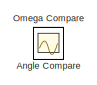
[diagram: root canvas - part 1/4, top left region]
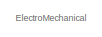
[diagram: root canvas - part 2/4, middle left region]
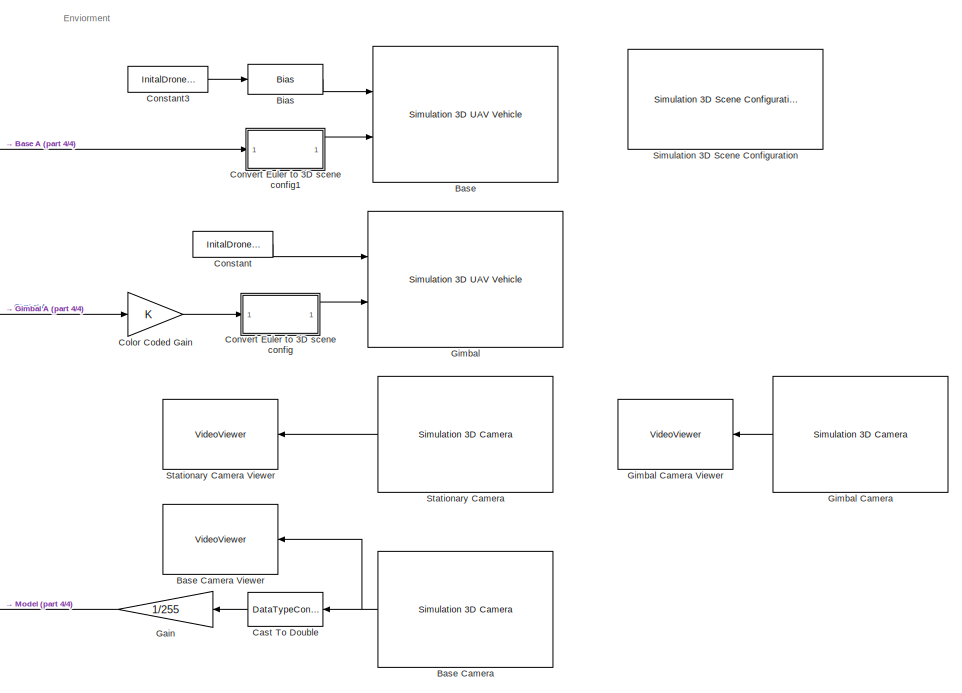
[diagram: root canvas - part 3/4, bottom right region]
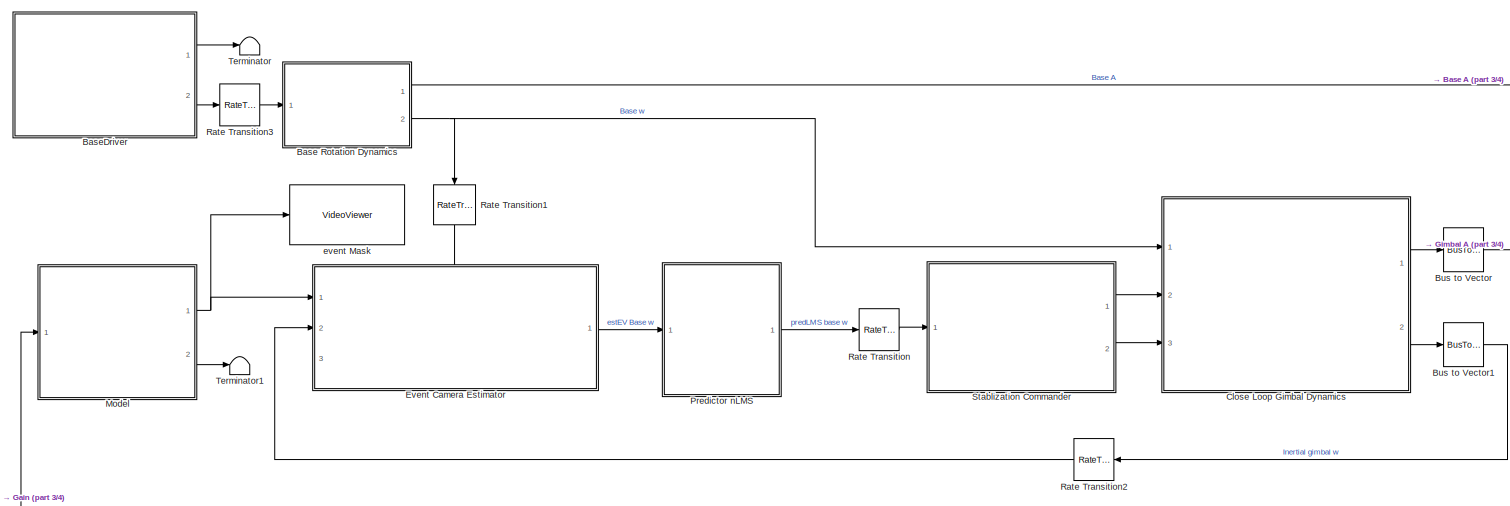
[diagram: root canvas - part 4/4, middle left region]
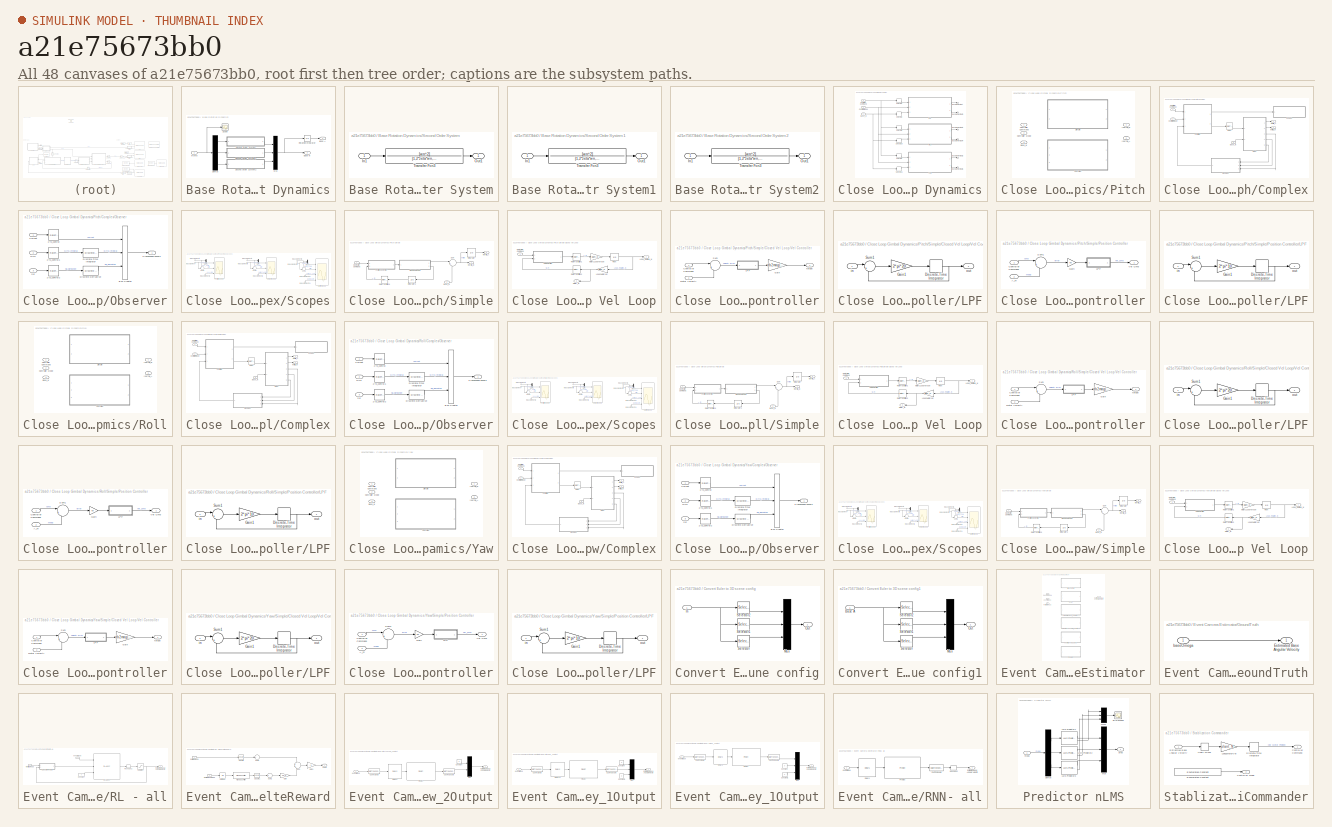
[diagram: thumbnail index - all 48 canvases of the model, root first then tree order]
MODEL slx_a21e75673bb0
KIND model
CONFIG AbsTol = auto
CONFIG EnableMultiTasking = off
CONFIG FixedStep = auto
CONFIG MaxStep = auto
CONFIG MinStep = auto
CONFIG RelTol = 1e-3
CONFIG SampleTimeConstraint = Unconstrained
CONFIG SolverName = VariableStepAuto
CONFIG StartTime = 0.0
CONFIG StopTime = 500
WORKSPACE source: mxarray member
WORKSPACE A0 = [0 0 0]
BLOCK [Scope] Angle Compare
  Floating = off
  IOType = viewer
  NumInputPorts = 1
  Ports = []
  ScopeSpecificationString = Simulink.scopes.TimeScopeBlockCfg('CurrentConfiguration', extmgr.ConfigurationSet(extmgr.Configuration('Core','General UI',true),extmgr.Configuration('Core','Source UI',true),extmgr.Configuration('Sources','WiredSimulink',true,'DataLoggingVariableName','ScopeData1'),extmgr.Configuration('Visuals','Time Domain',true,'SerializedDisplays',{struct('MinYLimReal','-0.1974','MaxYLimReal','0.18847','YLabe...<+1649ch>
BLOCK [Reference] Base  REF=uavsim3dlib/Simulation 3D UAV Vehicle
  Ports = [2]
  SourceBlock = uavsim3dlib/Simulation 3D UAV Vehicle
  SourceProductName = UAV Toolbox
  SourceType = Simulation 3D UAV Vehicle
BLOCK [Reference] Base Camera  REF=sim3dcameralib/Simulation 3D Camera
  NameLocation = top
  Ports = [0, 1]
  Priority = 1
  SourceBlock = sim3dcameralib/Simulation 3D Camera
  SourceProductBaseCode = DR,UV,VE
  SourceType = Simulation 3D Camera
BLOCK [VideoViewer] Base Camera Viewer
  FigPos = [876.2 448.4 498.4 327.2]
  NameLocation = top
  Ports = [1]
  ScopeSpecificationString = vipscopes.VideoViewerScopeCfg('CurrentConfiguration', extmgr.ConfigurationSet(extmgr.Configuration('Core','General UI',true),extmgr.Configuration('Core','Source UI',true),extmgr.Configuration('Sources','WiredSimulink',true),extmgr.Configuration('Visuals','Video',true),extmgr.Configuration('Tools','Image Navigation Tools',true),extmgr.Configuration('Tools','Image Tool',true),extmgr.Configuration('T...<+109ch>
BLOCK [SubSystem] Base Rotation Dynamics
  Ports = [1, 2]
  RequestExecContextInheritance = off
  TreatAsAtomicUnit = on
BLOCK [Outport] Base Rotation Dynamics/Base A
BLOCK [Outport] Base Rotation Dynamics/Base w
  Port = 2
BLOCK [Demux] Base Rotation Dynamics/Demux
  Outputs = 3
  Ports = [1, 3]
BLOCK [Mux] Base Rotation Dynamics/Mux
  DisplayOption = bar
  Inputs = 3
  Ports = [3, 1]
BLOCK [Integrator] Base Rotation Dynamics/RotationIntegrator
  InitialCondition = A0
  Ports = [1, 1]
BLOCK [Scope] Base Rotation Dynamics/Scope
  Floating = off
  NumInputPorts = 1
  Ports = [1]
  ScopeSpecificationString = Simulink.scopes.TimeScopeBlockCfg('CurrentConfiguration', extmgr.ConfigurationSet(extmgr.Configuration('Core','General UI',true),extmgr.Configuration('Core','Source UI',true),extmgr.Configuration('Sources','WiredSimulink',true,'DataLoggingVariableName','ScopeData3'),extmgr.Configuration('Visuals','Time Domain',true,'SerializedDisplays',{struct('MinYLimReal','-0.16599','MaxYLimReal','0.07197','YLab...<+1498ch>
BLOCK [SubSystem] Base Rotation Dynamics/Second Order System
  Ports = [1, 1]
  RequestExecContextInheritance = off
BLOCK [Inport] Base Rotation Dynamics/Second Order System/In1
BLOCK [Outport] Base Rotation Dynamics/Second Order System/Out1
BLOCK [TransferFcn] Base Rotation Dynamics/Second Order System/Transfer Fcn3
  Denominator = [1,2*zeta*wn,wn^2]
  Numerator = [wn^2]
BLOCK [SubSystem] Base Rotation Dynamics/Second Order System1
  Ports = [1, 1]
  RequestExecContextInheritance = off
BLOCK [Inport] Base Rotation Dynamics/Second Order System1/In1
BLOCK [Outport] Base Rotation Dynamics/Second Order System1/Out1
BLOCK [TransferFcn] Base Rotation Dynamics/Second Order System1/Transfer Fcn3
  Denominator = [1,2*zeta*wn,wn^2]
  Numerator = [wn^2]
BLOCK [SubSystem] Base Rotation Dynamics/Second Order System2
  Ports = [1, 1]
  RequestExecContextInheritance = off
BLOCK [Inport] Base Rotation Dynamics/Second Order System2/In1
BLOCK [Outport] Base Rotation Dynamics/Second Order System2/Out1
BLOCK [TransferFcn] Base Rotation Dynamics/Second Order System2/Transfer Fcn3
  Denominator = [1,2*zeta*wn,wn^2]
  Numerator = [wn^2]
BLOCK [Inport] Base Rotation Dynamics/w cmd
BLOCK [SubSystem] BaseDriver
  Ports = [0, 2]
  ReferencedSubsystem = BaseDriver
  RequestExecContextInheritance = off
  TreatAsAtomicUnit = on
BLOCK [Bias] Bias
  Bias = [0,0,0.6]
  SaturateOnIntegerOverflow = off
BLOCK [BusToVector] Bus to Vector
BLOCK [BusToVector] Bus to Vector1
BLOCK [DataTypeConversion] Cast To Double
  NameLocation = top
  OutDataTypeStr = double
  RndMeth = Floor
  SaturateOnIntegerOverflow = off
BLOCK [SubSystem] Close Loop Gimbal Dynamics
  Ports = [3, 2]
  RequestExecContextInheritance = off
BLOCK [Inport] Close Loop Gimbal Dynamics/Base_w
  NameLocation = left
BLOCK [Outport] Close Loop Gimbal Dynamics/Bus Element Out
  Port = 2
BLOCK [Outport] Close Loop Gimbal Dynamics/Bus Element Out1
  Port = 2
BLOCK [Outport] Close Loop Gimbal Dynamics/Bus Element Out2
  Port = 2
BLOCK [Outport] Close Loop Gimbal Dynamics/Bus Element Out3
BLOCK [Outport] Close Loop Gimbal Dynamics/Bus Element Out4
BLOCK [Outport] Close Loop Gimbal Dynamics/Bus Element Out5
BLOCK [Inport] Close Loop Gimbal Dynamics/Controller Command
  NameLocation = left
  Port = 2
BLOCK [Inport] Close Loop Gimbal Dynamics/Controller Mode
  NameLocation = left
  Port = 3
BLOCK [SubSystem] Close Loop Gimbal Dynamics/Pitch
  LabelModeActiveChoice = Simple
  Ports = [3, 2]
  RequestExecContextInheritance = off
  Variant = on
  VariantControl = Choice
  VariantControlMode = label
BLOCK [Inport] Close Loop Gimbal Dynamics/Pitch/Base_w
  Port = 3
BLOCK [SubSystem] Close Loop Gimbal Dynamics/Pitch/Complex
  Ports = [3, 2]
  RequestExecContextInheritance = off
  VariantControl = Complex
BLOCK [Inport] Close Loop Gimbal Dynamics/Pitch/Complex/Base_w
  Port = 3
BLOCK [ModelReference] Close Loop Gimbal Dynamics/Pitch/Complex/Controller
  ModelNameDialog = Controller
  ModelReferenceVersion = 1.79
  Ports = [3, 2]
BLOCK [Inport] Close Loop Gimbal Dynamics/Pitch/Complex/Controller Command
BLOCK [Inport] Close Loop Gimbal Dynamics/Pitch/Complex/Controller Mode
  Port = 2
BLOCK [RateTransition] Close Loop Gimbal Dynamics/Pitch/Complex/Delay
  NameLocation = top
  OutPortSampleTime = 0
BLOCK [Outport] Close Loop Gimbal Dynamics/Pitch/Complex/Inertial_A
  Port = 2
BLOCK [Outport] Close Loop Gimbal Dynamics/Pitch/Complex/Inertial_w
BLOCK [SubSystem] Close Loop Gimbal Dynamics/Pitch/Complex/Observer
  Ports = [3, 1]
  RequestExecContextInheritance = off
  TreatAsAtomicUnit = on
BLOCK [RateTransition] Close Loop Gimbal Dynamics/Pitch/Complex/Observer/2 ts_control
  OutPortSampleTime = ts_control
BLOCK [RateTransition] Close Loop Gimbal Dynamics/Pitch/Complex/Observer/2 ts_control1
  OutPortSampleTime = ts_control
BLOCK [RateTransition] Close Loop Gimbal Dynamics/Pitch/Complex/Observer/2 ts_control2
  OutPortSampleTime = ts_control
BLOCK [BusCreator] Close Loop Gimbal Dynamics/Pitch/Complex/Observer/Bus Creator
  DisplayOption = bar
  InheritFromInputs = on
  Inputs = 3
  OutDataTypeStr = Bus: Processed_Sensors
  Ports = [3, 1]
BLOCK [Inport] Close Loop Gimbal Dynamics/Pitch/Complex/Observer/Current
  SampleTime = ts_control
BLOCK [Reference] Close Loop Gimbal Dynamics/Pitch/Complex/Observer/Discrete Derivative  REF=simulink/Discrete/Discrete Derivative
  NameLocation = top
  Ports = [1, 1]
  SourceBlock = simulink/Discrete/Discrete Derivative
  SourceProductBaseCode = SL
  SourceType = Discrete Derivative
BLOCK [DiscreteIntegrator] Close Loop Gimbal Dynamics/Pitch/Complex/Observer/Discrete-Time Integrator
  ICPrevOutput = DiscIntNeverNeededParam
  ICPrevScaledInput = DiscIntNeverNeededParam
  InitialConditionSetting = Auto
  IntegratorMethod = Integration: Trapezoidal
  Ports = [1, 1]
  SampleTime = -1
BLOCK [Inport] Close Loop Gimbal Dynamics/Pitch/Complex/Observer/Gyro
  Port = 2
  SampleTime = ts_control
BLOCK [Outport] Close Loop Gimbal Dynamics/Pitch/Complex/Observer/ProcessedSensors
  OutDataTypeStr = Bus: Processed_Sensors
  SampleTime = ts_control
BLOCK [Inport] Close Loop Gimbal Dynamics/Pitch/Complex/Observer/SE
  Port = 3
  SampleTime = ts_control
BLOCK [ModelReference] Close Loop Gimbal Dynamics/Pitch/Complex/Plant
  ModelNameDialog = Plant
  ModelReferenceVersion = 1.81
  Ports = [2, 5]
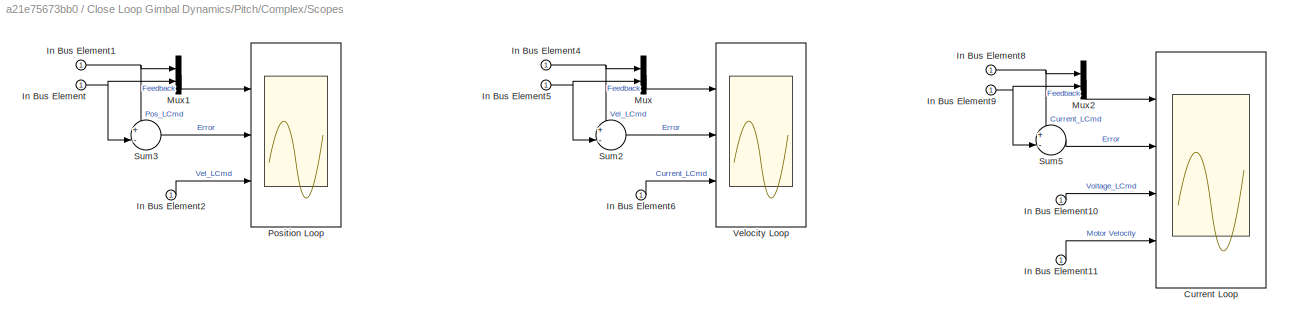
BLOCK [SubSystem] Close Loop Gimbal Dynamics/Pitch/Complex/Scopes
  Ports = [1]
  RequestExecContextInheritance = off
BLOCK [Scope] Close Loop Gimbal Dynamics/Pitch/Complex/Scopes/Current Loop
  Floating = off
  NumInputPorts = 4
  Ports = [4]
  ScopeSpecificationString = Simulink.scopes.TimeScopeBlockCfg('CurrentConfiguration', extmgr.ConfigurationSet(extmgr.Configuration('Core','General UI',true),extmgr.Configuration('Core','Source UI',true),extmgr.Configuration('Sources','WiredSimulink',true,'DataLoggingVariableName','ScopeData1'),extmgr.Configuration('Visuals','Time Domain',true,'SerializedDisplays',{struct('MinYLimReal','-22.69964','MaxYLimReal','22.09628','YL...<+3485ch>  <repeated x3 — deduplicated; at blocks: Current Loop>
BLOCK [Inport] Close Loop Gimbal Dynamics/Pitch/Complex/Scopes/In Bus Element
BLOCK [Inport] Close Loop Gimbal Dynamics/Pitch/Complex/Scopes/In Bus Element1
BLOCK [Inport] Close Loop Gimbal Dynamics/Pitch/Complex/Scopes/In Bus Element10
BLOCK [Inport] Close Loop Gimbal Dynamics/Pitch/Complex/Scopes/In Bus Element11
BLOCK [Inport] Close Loop Gimbal Dynamics/Pitch/Complex/Scopes/In Bus Element2
BLOCK [Inport] Close Loop Gimbal Dynamics/Pitch/Complex/Scopes/In Bus Element4
BLOCK [Inport] Close Loop Gimbal Dynamics/Pitch/Complex/Scopes/In Bus Element5
BLOCK [Inport] Close Loop Gimbal Dynamics/Pitch/Complex/Scopes/In Bus Element6
BLOCK [Inport] Close Loop Gimbal Dynamics/Pitch/Complex/Scopes/In Bus Element8
BLOCK [Inport] Close Loop Gimbal Dynamics/Pitch/Complex/Scopes/In Bus Element9
BLOCK [Mux] Close Loop Gimbal Dynamics/Pitch/Complex/Scopes/Mux
  DisplayOption = bar
  Inputs = 2
  Ports = [2, 1]
BLOCK [Mux] Close Loop Gimbal Dynamics/Pitch/Complex/Scopes/Mux1
  DisplayOption = bar
  Inputs = 2
  Ports = [2, 1]
BLOCK [Mux] Close Loop Gimbal Dynamics/Pitch/Complex/Scopes/Mux2
  DisplayOption = bar
  Inputs = 2
  Ports = [2, 1]
BLOCK [Scope] Close Loop Gimbal Dynamics/Pitch/Complex/Scopes/Position Loop
  Floating = off
  NumInputPorts = 3
  Ports = [3]
  ScopeSpecificationString = Simulink.scopes.TimeScopeBlockCfg('CurrentConfiguration', extmgr.ConfigurationSet(extmgr.Configuration('Core','General UI',true),extmgr.Configuration('Core','Source UI',true),extmgr.Configuration('Sources','WiredSimulink',true,'DataLoggingVariableName','ScopeData2'),extmgr.Configuration('Visuals','Time Domain',true,'SerializedDisplays',{struct('MinYLimReal','-0.02273','MaxYLimReal','0.02266','YLab...<+2810ch>  <repeated x3 — deduplicated; at blocks: Position Loop>
BLOCK [Sum] Close Loop Gimbal Dynamics/Pitch/Complex/Scopes/Sum2
  Inputs = +-|
  Ports = [2, 1]
BLOCK [Sum] Close Loop Gimbal Dynamics/Pitch/Complex/Scopes/Sum3
  Inputs = +-|
  Ports = [2, 1]
BLOCK [Sum] Close Loop Gimbal Dynamics/Pitch/Complex/Scopes/Sum5
  Inputs = +-|
  Ports = [2, 1]
BLOCK [Scope] Close Loop Gimbal Dynamics/Pitch/Complex/Scopes/Velocity Loop
  Floating = off
  NumInputPorts = 3
  Ports = [3]
  ScopeSpecificationString = Simulink.scopes.TimeScopeBlockCfg('CurrentConfiguration', extmgr.ConfigurationSet(extmgr.Configuration('Core','General UI',true),extmgr.Configuration('Core','Source UI',true),extmgr.Configuration('Sources','WiredSimulink',true,'DataLoggingVariableName','ScopeData3'),extmgr.Configuration('Visuals','Time Domain',true,'SerializedDisplays',{struct('MinYLimReal','-60.30126','MaxYLimReal','61.23749','YL...<+2796ch>  <repeated x3 — deduplicated; at blocks: Velocity Loop>
BLOCK [Inport] Close Loop Gimbal Dynamics/Pitch/Controller Command
BLOCK [Inport] Close Loop Gimbal Dynamics/Pitch/Controller Mode
  Port = 2
BLOCK [Outport] Close Loop Gimbal Dynamics/Pitch/Inertial_A
  Port = 2
BLOCK [Outport] Close Loop Gimbal Dynamics/Pitch/Inertial_w
BLOCK [SubSystem] Close Loop Gimbal Dynamics/Pitch/Simple
  Ports = [2, 2]
  RequestExecContextInheritance = off
  TreatAsAtomicUnit = on
  VariantControl = Simple
BLOCK [Inport] Close Loop Gimbal Dynamics/Pitch/Simple/Base_w
  Port = 2
BLOCK [SubSystem] Close Loop Gimbal Dynamics/Pitch/Simple/Closed Vel Loop
  Ports = [1, 2]
  RequestExecContextInheritance = off
BLOCK [Inport] Close Loop Gimbal Dynamics/Pitch/Simple/Closed Vel Loop/Controller Command
BLOCK [Gain] Close Loop Gimbal Dynamics/Pitch/Simple/Closed Vel Loop/Load2Motor Vel
  Gain = plant_N
BLOCK [Outport] Close Loop Gimbal Dynamics/Pitch/Simple/Closed Vel Loop/Load_Relative_w
BLOCK [Gain] Close Loop Gimbal Dynamics/Pitch/Simple/Closed Vel Loop/Motor2Load Torque
  Gain = plant_N
BLOCK [Outport] Close Loop Gimbal Dynamics/Pitch/Simple/Closed Vel Loop/Motor_w
  NameLocation = top
  Port = 2
BLOCK [Integrator] Close Loop Gimbal Dynamics/Pitch/Simple/Closed Vel Loop/Plant
  Ports = [1, 1]
BLOCK [RateTransition] Close Loop Gimbal Dynamics/Pitch/Simple/Closed Vel Loop/Rate Transition1
  OutPortSampleTime = 0
BLOCK [RateTransition] Close Loop Gimbal Dynamics/Pitch/Simple/Closed Vel Loop/Rate Transition2
  NameLocation = top
  OutPortSampleTime = ts_control
BLOCK [SubSystem] Close Loop Gimbal Dynamics/Pitch/Simple/Closed Vel Loop/Vel Controller
  Ports = [2, 1]
  RequestExecContextInheritance = off
BLOCK [Inport] Close Loop Gimbal Dynamics/Pitch/Simple/Closed Vel Loop/Vel Controller/Controller Command
BLOCK [Gain] Close Loop Gimbal Dynamics/Pitch/Simple/Closed Vel Loop/Vel Controller/Gain
  Gain = db2mag(25)
BLOCK [SubSystem] Close Loop Gimbal Dynamics/Pitch/Simple/Closed Vel Loop/Vel Controller/LPF
  Ports = [1, 1]
  RequestExecContextInheritance = off
BLOCK [DiscreteIntegrator] Close Loop Gimbal Dynamics/Pitch/Simple/Closed Vel Loop/Vel Controller/LPF/Discrete-Time Integrator
  ICPrevOutput = DiscIntNeverNeededParam
  ICPrevScaledInput = DiscIntNeverNeededParam
  InitialConditionSetting = Auto
  Ports = [1, 1]
  SampleTime = -1
BLOCK [Gain] Close Loop Gimbal Dynamics/Pitch/Simple/Closed Vel Loop/Vel Controller/LPF/Gain1
  Gain = 2*pi*20
BLOCK [Sum] Close Loop Gimbal Dynamics/Pitch/Simple/Closed Vel Loop/Vel Controller/LPF/Sum1
  Inputs = |+-
  Ports = [2, 1]
BLOCK [Inport] Close Loop Gimbal Dynamics/Pitch/Simple/Closed Vel Loop/Vel Controller/LPF/in
BLOCK [Outport] Close Loop Gimbal Dynamics/Pitch/Simple/Closed Vel Loop/Vel Controller/LPF/out
BLOCK [Inport] Close Loop Gimbal Dynamics/Pitch/Simple/Closed Vel Loop/Vel Controller/Motor Velocity
  Port = 2
BLOCK [Sum] Close Loop Gimbal Dynamics/Pitch/Simple/Closed Vel Loop/Vel Controller/Sum
  Inputs = |+-
  Ports = [2, 1]
BLOCK [Outport] Close Loop Gimbal Dynamics/Pitch/Simple/Closed Vel Loop/Vel Controller/torque
BLOCK [Inport] Close Loop Gimbal Dynamics/Pitch/Simple/Controller Command
BLOCK [Outport] Close Loop Gimbal Dynamics/Pitch/Simple/Inertial_A
  Port = 2
BLOCK [Outport] Close Loop Gimbal Dynamics/Pitch/Simple/Inertial_w
BLOCK [Integrator] Close Loop Gimbal Dynamics/Pitch/Simple/Integrator
  Ports = [1, 1]
BLOCK [Integrator] Close Loop Gimbal Dynamics/Pitch/Simple/Integrator1
  NameLocation = top
  Ports = [1, 1]
BLOCK [SubSystem] Close Loop Gimbal Dynamics/Pitch/Simple/Position Controller
  Ports = [2, 1]
  RequestExecContextInheritance = off
BLOCK [Inport] Close Loop Gimbal Dynamics/Pitch/Simple/Position Controller/A_m
  Port = 2
BLOCK [Inport] Close Loop Gimbal Dynamics/Pitch/Simple/Position Controller/Controller Command
BLOCK [Gain] Close Loop Gimbal Dynamics/Pitch/Simple/Position Controller/Gain
  Gain = 50
BLOCK [SubSystem] Close Loop Gimbal Dynamics/Pitch/Simple/Position Controller/LPF
  Ports = [1, 1]
  RequestExecContextInheritance = off
BLOCK [DiscreteIntegrator] Close Loop Gimbal Dynamics/Pitch/Simple/Position Controller/LPF/Discrete-Time Integrator
  ICPrevOutput = DiscIntNeverNeededParam
  ICPrevScaledInput = DiscIntNeverNeededParam
  InitialConditionSetting = Auto
  Ports = [1, 1]
  SampleTime = -1
BLOCK [Gain] Close Loop Gimbal Dynamics/Pitch/Simple/Position Controller/LPF/Gain1
  Gain = 2*pi*10
BLOCK [Sum] Close Loop Gimbal Dynamics/Pitch/Simple/Position Controller/LPF/Sum1
  Inputs = |+-
  Ports = [2, 1]
BLOCK [Inport] Close Loop Gimbal Dynamics/Pitch/Simple/Position Controller/LPF/in
BLOCK [Outport] Close Loop Gimbal Dynamics/Pitch/Simple/Position Controller/LPF/out
BLOCK [Sum] Close Loop Gimbal Dynamics/Pitch/Simple/Position Controller/Sum1
  Inputs = |+-
  Ports = [2, 1]
BLOCK [Outport] Close Loop Gimbal Dynamics/Pitch/Simple/Position Controller/Vel Cmd
BLOCK [RateTransition] Close Loop Gimbal Dynamics/Pitch/Simple/Rate Transition3
  NameLocation = top
  OutPortSampleTime = ts_control
BLOCK [Sum] Close Loop Gimbal Dynamics/Pitch/Simple/Sum
  Inputs = |++
  Ports = [2, 1]
BLOCK [SubSystem] Close Loop Gimbal Dynamics/Roll
  LabelModeActiveChoice = Simple
  Ports = [3, 2]
  RequestExecContextInheritance = off
  Variant = on
  VariantControl = Choice
  VariantControlMode = label
BLOCK [Inport] Close Loop Gimbal Dynamics/Roll/Base_w
  Port = 3
BLOCK [SubSystem] Close Loop Gimbal Dynamics/Roll/Complex
  Ports = [3, 2]
  RequestExecContextInheritance = off
  VariantControl = Complex
BLOCK [Inport] Close Loop Gimbal Dynamics/Roll/Complex/Base_w
  Port = 3
BLOCK [ModelReference] Close Loop Gimbal Dynamics/Roll/Complex/Controller
  ModelNameDialog = Controller
  ModelReferenceVersion = 1.79
  Ports = [3, 2]
BLOCK [Inport] Close Loop Gimbal Dynamics/Roll/Complex/Controller Command
BLOCK [Inport] Close Loop Gimbal Dynamics/Roll/Complex/Controller Mode
  Port = 2
BLOCK [RateTransition] Close Loop Gimbal Dynamics/Roll/Complex/Delay
  NameLocation = top
  OutPortSampleTime = 0
BLOCK [Outport] Close Loop Gimbal Dynamics/Roll/Complex/Inertial_A
  Port = 2
BLOCK [Outport] Close Loop Gimbal Dynamics/Roll/Complex/Inertial_w
BLOCK [SubSystem] Close Loop Gimbal Dynamics/Roll/Complex/Observer
  Ports = [3, 1]
  RequestExecContextInheritance = off
  TreatAsAtomicUnit = on
BLOCK [RateTransition] Close Loop Gimbal Dynamics/Roll/Complex/Observer/2 ts_control
  OutPortSampleTime = ts_control
BLOCK [RateTransition] Close Loop Gimbal Dynamics/Roll/Complex/Observer/2 ts_control1
  OutPortSampleTime = ts_control
BLOCK [RateTransition] Close Loop Gimbal Dynamics/Roll/Complex/Observer/2 ts_control2
  OutPortSampleTime = ts_control
BLOCK [BusCreator] Close Loop Gimbal Dynamics/Roll/Complex/Observer/Bus Creator
  DisplayOption = bar
  InheritFromInputs = on
  Inputs = 3
  OutDataTypeStr = Bus: Processed_Sensors
  Ports = [3, 1]
BLOCK [Inport] Close Loop Gimbal Dynamics/Roll/Complex/Observer/Current
  SampleTime = ts_control
BLOCK [Reference] Close Loop Gimbal Dynamics/Roll/Complex/Observer/Discrete Derivative  REF=simulink/Discrete/Discrete Derivative
  NameLocation = top
  Ports = [1, 1]
  SourceBlock = simulink/Discrete/Discrete Derivative
  SourceProductBaseCode = SL
  SourceType = Discrete Derivative
BLOCK [DiscreteIntegrator] Close Loop Gimbal Dynamics/Roll/Complex/Observer/Discrete-Time Integrator
  ICPrevOutput = DiscIntNeverNeededParam
  ICPrevScaledInput = DiscIntNeverNeededParam
  InitialConditionSetting = Auto
  IntegratorMethod = Integration: Trapezoidal
  Ports = [1, 1]
  SampleTime = -1
BLOCK [Inport] Close Loop Gimbal Dynamics/Roll/Complex/Observer/Gyro
  Port = 2
  SampleTime = ts_control
BLOCK [Outport] Close Loop Gimbal Dynamics/Roll/Complex/Observer/ProcessedSensors
  OutDataTypeStr = Bus: Processed_Sensors
  SampleTime = ts_control
BLOCK [Inport] Close Loop Gimbal Dynamics/Roll/Complex/Observer/SE
  Port = 3
  SampleTime = ts_control
BLOCK [ModelReference] Close Loop Gimbal Dynamics/Roll/Complex/Plant
  ModelNameDialog = Plant
  ModelReferenceVersion = 1.81
  Ports = [2, 5]
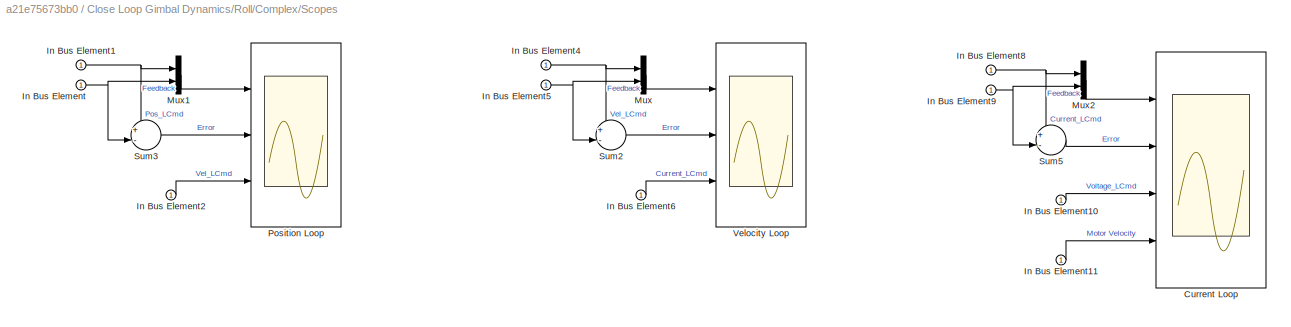
BLOCK [SubSystem] Close Loop Gimbal Dynamics/Roll/Complex/Scopes
  Ports = [1]
  RequestExecContextInheritance = off
BLOCK [Scope] Close Loop Gimbal Dynamics/Roll/Complex/Scopes/Current Loop
  Floating = off
  NumInputPorts = 4
  Ports = [4]
BLOCK [Inport] Close Loop Gimbal Dynamics/Roll/Complex/Scopes/In Bus Element
BLOCK [Inport] Close Loop Gimbal Dynamics/Roll/Complex/Scopes/In Bus Element1
BLOCK [Inport] Close Loop Gimbal Dynamics/Roll/Complex/Scopes/In Bus Element10
BLOCK [Inport] Close Loop Gimbal Dynamics/Roll/Complex/Scopes/In Bus Element11
BLOCK [Inport] Close Loop Gimbal Dynamics/Roll/Complex/Scopes/In Bus Element2
BLOCK [Inport] Close Loop Gimbal Dynamics/Roll/Complex/Scopes/In Bus Element4
BLOCK [Inport] Close Loop Gimbal Dynamics/Roll/Complex/Scopes/In Bus Element5
BLOCK [Inport] Close Loop Gimbal Dynamics/Roll/Complex/Scopes/In Bus Element6
BLOCK [Inport] Close Loop Gimbal Dynamics/Roll/Complex/Scopes/In Bus Element8
BLOCK [Inport] Close Loop Gimbal Dynamics/Roll/Complex/Scopes/In Bus Element9
BLOCK [Mux] Close Loop Gimbal Dynamics/Roll/Complex/Scopes/Mux
  DisplayOption = bar
  Inputs = 2
  Ports = [2, 1]
BLOCK [Mux] Close Loop Gimbal Dynamics/Roll/Complex/Scopes/Mux1
  DisplayOption = bar
  Inputs = 2
  Ports = [2, 1]
BLOCK [Mux] Close Loop Gimbal Dynamics/Roll/Complex/Scopes/Mux2
  DisplayOption = bar
  Inputs = 2
  Ports = [2, 1]
BLOCK [Scope] Close Loop Gimbal Dynamics/Roll/Complex/Scopes/Position Loop
  Floating = off
  NumInputPorts = 3
  Ports = [3]
BLOCK [Sum] Close Loop Gimbal Dynamics/Roll/Complex/Scopes/Sum2
  Inputs = +-|
  Ports = [2, 1]
BLOCK [Sum] Close Loop Gimbal Dynamics/Roll/Complex/Scopes/Sum3
  Inputs = +-|
  Ports = [2, 1]
BLOCK [Sum] Close Loop Gimbal Dynamics/Roll/Complex/Scopes/Sum5
  Inputs = +-|
  Ports = [2, 1]
BLOCK [Scope] Close Loop Gimbal Dynamics/Roll/Complex/Scopes/Velocity Loop
  Floating = off
  NumInputPorts = 3
  Ports = [3]
BLOCK [Inport] Close Loop Gimbal Dynamics/Roll/Controller Command
BLOCK [Inport] Close Loop Gimbal Dynamics/Roll/Controller Mode
  Port = 2
BLOCK [Outport] Close Loop Gimbal Dynamics/Roll/Inertial_A
  Port = 2
BLOCK [Outport] Close Loop Gimbal Dynamics/Roll/Inertial_w
BLOCK [SubSystem] Close Loop Gimbal Dynamics/Roll/Simple
  Ports = [2, 2]
  RequestExecContextInheritance = off
  TreatAsAtomicUnit = on
  VariantControl = Simple
BLOCK [Inport] Close Loop Gimbal Dynamics/Roll/Simple/Base_w
  Port = 2
BLOCK [SubSystem] Close Loop Gimbal Dynamics/Roll/Simple/Closed Vel Loop
  Ports = [1, 2]
  RequestExecContextInheritance = off
BLOCK [Inport] Close Loop Gimbal Dynamics/Roll/Simple/Closed Vel Loop/Controller Command
BLOCK [Gain] Close Loop Gimbal Dynamics/Roll/Simple/Closed Vel Loop/Load2Motor Vel
  Gain = plant_N
BLOCK [Outport] Close Loop Gimbal Dynamics/Roll/Simple/Closed Vel Loop/Load_Relative_w
BLOCK [Gain] Close Loop Gimbal Dynamics/Roll/Simple/Closed Vel Loop/Motor2Load Torque
  Gain = plant_N
BLOCK [Outport] Close Loop Gimbal Dynamics/Roll/Simple/Closed Vel Loop/Motor_w
  NameLocation = top
  Port = 2
BLOCK [Integrator] Close Loop Gimbal Dynamics/Roll/Simple/Closed Vel Loop/Plant
  Ports = [1, 1]
BLOCK [RateTransition] Close Loop Gimbal Dynamics/Roll/Simple/Closed Vel Loop/Rate Transition1
  OutPortSampleTime = 0
BLOCK [RateTransition] Close Loop Gimbal Dynamics/Roll/Simple/Closed Vel Loop/Rate Transition2
  NameLocation = top
  OutPortSampleTime = ts_control
BLOCK [SubSystem] Close Loop Gimbal Dynamics/Roll/Simple/Closed Vel Loop/Vel Controller
  Ports = [2, 1]
  RequestExecContextInheritance = off
BLOCK [Inport] Close Loop Gimbal Dynamics/Roll/Simple/Closed Vel Loop/Vel Controller/Controller Command
BLOCK [Gain] Close Loop Gimbal Dynamics/Roll/Simple/Closed Vel Loop/Vel Controller/Gain
  Gain = db2mag(25)
BLOCK [SubSystem] Close Loop Gimbal Dynamics/Roll/Simple/Closed Vel Loop/Vel Controller/LPF
  Ports = [1, 1]
  RequestExecContextInheritance = off
BLOCK [DiscreteIntegrator] Close Loop Gimbal Dynamics/Roll/Simple/Closed Vel Loop/Vel Controller/LPF/Discrete-Time Integrator
  ICPrevOutput = DiscIntNeverNeededParam
  ICPrevScaledInput = DiscIntNeverNeededParam
  InitialConditionSetting = Auto
  Ports = [1, 1]
  SampleTime = -1
BLOCK [Gain] Close Loop Gimbal Dynamics/Roll/Simple/Closed Vel Loop/Vel Controller/LPF/Gain1
  Gain = 2*pi*20
BLOCK [Sum] Close Loop Gimbal Dynamics/Roll/Simple/Closed Vel Loop/Vel Controller/LPF/Sum1
  Inputs = |+-
  Ports = [2, 1]
BLOCK [Inport] Close Loop Gimbal Dynamics/Roll/Simple/Closed Vel Loop/Vel Controller/LPF/in
BLOCK [Outport] Close Loop Gimbal Dynamics/Roll/Simple/Closed Vel Loop/Vel Controller/LPF/out
BLOCK [Inport] Close Loop Gimbal Dynamics/Roll/Simple/Closed Vel Loop/Vel Controller/Motor Velocity
  Port = 2
BLOCK [Sum] Close Loop Gimbal Dynamics/Roll/Simple/Closed Vel Loop/Vel Controller/Sum
  Inputs = |+-
  Ports = [2, 1]
BLOCK [Outport] Close Loop Gimbal Dynamics/Roll/Simple/Closed Vel Loop/Vel Controller/torque
BLOCK [Inport] Close Loop Gimbal Dynamics/Roll/Simple/Controller Command
BLOCK [Outport] Close Loop Gimbal Dynamics/Roll/Simple/Inertial_A
  Port = 2
BLOCK [Outport] Close Loop Gimbal Dynamics/Roll/Simple/Inertial_w
BLOCK [Integrator] Close Loop Gimbal Dynamics/Roll/Simple/Integrator
  Ports = [1, 1]
BLOCK [Integrator] Close Loop Gimbal Dynamics/Roll/Simple/Integrator1
  NameLocation = top
  Ports = [1, 1]
BLOCK [SubSystem] Close Loop Gimbal Dynamics/Roll/Simple/Position Controller
  Ports = [2, 1]
  RequestExecContextInheritance = off
BLOCK [Inport] Close Loop Gimbal Dynamics/Roll/Simple/Position Controller/A_m
  Port = 2
BLOCK [Inport] Close Loop Gimbal Dynamics/Roll/Simple/Position Controller/Controller Command
BLOCK [Gain] Close Loop Gimbal Dynamics/Roll/Simple/Position Controller/Gain
  Gain = 50
BLOCK [SubSystem] Close Loop Gimbal Dynamics/Roll/Simple/Position Controller/LPF
  Ports = [1, 1]
  RequestExecContextInheritance = off
BLOCK [DiscreteIntegrator] Close Loop Gimbal Dynamics/Roll/Simple/Position Controller/LPF/Discrete-Time Integrator
  ICPrevOutput = DiscIntNeverNeededParam
  ICPrevScaledInput = DiscIntNeverNeededParam
  InitialConditionSetting = Auto
  Ports = [1, 1]
  SampleTime = -1
BLOCK [Gain] Close Loop Gimbal Dynamics/Roll/Simple/Position Controller/LPF/Gain1
  Gain = 2*pi*10
BLOCK [Sum] Close Loop Gimbal Dynamics/Roll/Simple/Position Controller/LPF/Sum1
  Inputs = |+-
  Ports = [2, 1]
BLOCK [Inport] Close Loop Gimbal Dynamics/Roll/Simple/Position Controller/LPF/in
BLOCK [Outport] Close Loop Gimbal Dynamics/Roll/Simple/Position Controller/LPF/out
BLOCK [Sum] Close Loop Gimbal Dynamics/Roll/Simple/Position Controller/Sum1
  Inputs = |+-
  Ports = [2, 1]
BLOCK [Outport] Close Loop Gimbal Dynamics/Roll/Simple/Position Controller/Vel Cmd
BLOCK [RateTransition] Close Loop Gimbal Dynamics/Roll/Simple/Rate Transition3
  NameLocation = top
  OutPortSampleTime = ts_control
BLOCK [Sum] Close Loop Gimbal Dynamics/Roll/Simple/Sum
  Inputs = |++
  Ports = [2, 1]
BLOCK [Selector] Close Loop Gimbal Dynamics/Selector1
  IndexOptions = Index vector (dialog)
  Indices = 3
  InputPortWidth = 3
  OutputSizes = 1
  Ports = [1, 1]
BLOCK [Selector] Close Loop Gimbal Dynamics/Selector10
  IndexOptions = Index vector (dialog)
  Indices = 2
  InputPortWidth = 3
  OutputSizes = 1
  Ports = [1, 1]
BLOCK [Selector] Close Loop Gimbal Dynamics/Selector11
  IndexOptions = Index vector (dialog)
  Indices = 3
  InputPortWidth = 3
  OutputSizes = 1
  Ports = [1, 1]
BLOCK [Selector] Close Loop Gimbal Dynamics/Selector3
  IndexOptions = Index vector (dialog)
  Indices = 1
  InputPortWidth = 3
  OutputSizes = 1
  Ports = [1, 1]
BLOCK [Selector] Close Loop Gimbal Dynamics/Selector7
  IndexOptions = Index vector (dialog)
  Indices = 1
  InputPortWidth = 3
  OutputSizes = 1
  Ports = [1, 1]
BLOCK [Selector] Close Loop Gimbal Dynamics/Selector8
  IndexOptions = Index vector (dialog)
  Indices = 2
  InputPortWidth = 3
  OutputSizes = 1
  Ports = [1, 1]
BLOCK [SubSystem] Close Loop Gimbal Dynamics/Yaw
  LabelModeActiveChoice = Simple
  Ports = [3, 2]
  RequestExecContextInheritance = off
  Variant = on
  VariantControl = Choice
  VariantControlMode = label
BLOCK [Inport] Close Loop Gimbal Dynamics/Yaw/Base_w
  Port = 3
BLOCK [SubSystem] Close Loop Gimbal Dynamics/Yaw/Complex
  Ports = [3, 2]
  RequestExecContextInheritance = off
  VariantControl = Complex
BLOCK [Inport] Close Loop Gimbal Dynamics/Yaw/Complex/Base_w
  Port = 3
BLOCK [ModelReference] Close Loop Gimbal Dynamics/Yaw/Complex/Controller
  ModelNameDialog = Controller
  ModelReferenceVersion = 1.79
  Ports = [3, 2]
BLOCK [Inport] Close Loop Gimbal Dynamics/Yaw/Complex/Controller Command
BLOCK [Inport] Close Loop Gimbal Dynamics/Yaw/Complex/Controller Mode
  Port = 2
BLOCK [RateTransition] Close Loop Gimbal Dynamics/Yaw/Complex/Delay
  NameLocation = top
  OutPortSampleTime = 0
BLOCK [Outport] Close Loop Gimbal Dynamics/Yaw/Complex/Inertial_A
  Port = 2
BLOCK [Outport] Close Loop Gimbal Dynamics/Yaw/Complex/Inertial_w
BLOCK [SubSystem] Close Loop Gimbal Dynamics/Yaw/Complex/Observer
  Ports = [3, 1]
  RequestExecContextInheritance = off
  TreatAsAtomicUnit = on
BLOCK [RateTransition] Close Loop Gimbal Dynamics/Yaw/Complex/Observer/2 ts_control
  OutPortSampleTime = ts_control
BLOCK [RateTransition] Close Loop Gimbal Dynamics/Yaw/Complex/Observer/2 ts_control1
  OutPortSampleTime = ts_control
BLOCK [RateTransition] Close Loop Gimbal Dynamics/Yaw/Complex/Observer/2 ts_control2
  OutPortSampleTime = ts_control
BLOCK [BusCreator] Close Loop Gimbal Dynamics/Yaw/Complex/Observer/Bus Creator
  DisplayOption = bar
  InheritFromInputs = on
  Inputs = 3
  OutDataTypeStr = Bus: Processed_Sensors
  Ports = [3, 1]
BLOCK [Inport] Close Loop Gimbal Dynamics/Yaw/Complex/Observer/Current
  SampleTime = ts_control
BLOCK [Reference] Close Loop Gimbal Dynamics/Yaw/Complex/Observer/Discrete Derivative  REF=simulink/Discrete/Discrete Derivative
  NameLocation = top
  Ports = [1, 1]
  SourceBlock = simulink/Discrete/Discrete Derivative
  SourceProductBaseCode = SL
  SourceType = Discrete Derivative
BLOCK [DiscreteIntegrator] Close Loop Gimbal Dynamics/Yaw/Complex/Observer/Discrete-Time Integrator
  ICPrevOutput = DiscIntNeverNeededParam
  ICPrevScaledInput = DiscIntNeverNeededParam
  InitialConditionSetting = Auto
  IntegratorMethod = Integration: Trapezoidal
  Ports = [1, 1]
  SampleTime = -1
BLOCK [Inport] Close Loop Gimbal Dynamics/Yaw/Complex/Observer/Gyro
  Port = 2
  SampleTime = ts_control
BLOCK [Outport] Close Loop Gimbal Dynamics/Yaw/Complex/Observer/ProcessedSensors
  OutDataTypeStr = Bus: Processed_Sensors
  SampleTime = ts_control
BLOCK [Inport] Close Loop Gimbal Dynamics/Yaw/Complex/Observer/SE
  Port = 3
  SampleTime = ts_control
BLOCK [ModelReference] Close Loop Gimbal Dynamics/Yaw/Complex/Plant
  ModelNameDialog = Plant
  ModelReferenceVersion = 1.81
  Ports = [2, 5]
BLOCK [SubSystem] Close Loop Gimbal Dynamics/Yaw/Complex/Scopes
  Ports = [1]
  RequestExecContextInheritance = off
BLOCK [Scope] Close Loop Gimbal Dynamics/Yaw/Complex/Scopes/Current Loop
  Floating = off
  NumInputPorts = 4
  Ports = [4]
BLOCK [Inport] Close Loop Gimbal Dynamics/Yaw/Complex/Scopes/In Bus Element
BLOCK [Inport] Close Loop Gimbal Dynamics/Yaw/Complex/Scopes/In Bus Element1
BLOCK [Inport] Close Loop Gimbal Dynamics/Yaw/Complex/Scopes/In Bus Element10
BLOCK [Inport] Close Loop Gimbal Dynamics/Yaw/Complex/Scopes/In Bus Element11
BLOCK [Inport] Close Loop Gimbal Dynamics/Yaw/Complex/Scopes/In Bus Element2
BLOCK [Inport] Close Loop Gimbal Dynamics/Yaw/Complex/Scopes/In Bus Element4
BLOCK [Inport] Close Loop Gimbal Dynamics/Yaw/Complex/Scopes/In Bus Element5
BLOCK [Inport] Close Loop Gimbal Dynamics/Yaw/Complex/Scopes/In Bus Element6
BLOCK [Inport] Close Loop Gimbal Dynamics/Yaw/Complex/Scopes/In Bus Element8
BLOCK [Inport] Close Loop Gimbal Dynamics/Yaw/Complex/Scopes/In Bus Element9
BLOCK [Mux] Close Loop Gimbal Dynamics/Yaw/Complex/Scopes/Mux
  DisplayOption = bar
  Inputs = 2
  Ports = [2, 1]
BLOCK [Mux] Close Loop Gimbal Dynamics/Yaw/Complex/Scopes/Mux1
  DisplayOption = bar
  Inputs = 2
  Ports = [2, 1]
BLOCK [Mux] Close Loop Gimbal Dynamics/Yaw/Complex/Scopes/Mux2
  DisplayOption = bar
  Inputs = 2
  Ports = [2, 1]
BLOCK [Scope] Close Loop Gimbal Dynamics/Yaw/Complex/Scopes/Position Loop
  Floating = off
  NumInputPorts = 3
  Ports = [3]
BLOCK [Sum] Close Loop Gimbal Dynamics/Yaw/Complex/Scopes/Sum2
  Inputs = +-|
  Ports = [2, 1]
BLOCK [Sum] Close Loop Gimbal Dynamics/Yaw/Complex/Scopes/Sum3
  Inputs = +-|
  Ports = [2, 1]
BLOCK [Sum] Close Loop Gimbal Dynamics/Yaw/Complex/Scopes/Sum5
  Inputs = +-|
  Ports = [2, 1]
BLOCK [Scope] Close Loop Gimbal Dynamics/Yaw/Complex/Scopes/Velocity Loop
  Floating = off
  NumInputPorts = 3
  Ports = [3]
BLOCK [Inport] Close Loop Gimbal Dynamics/Yaw/Controller Command
BLOCK [Inport] Close Loop Gimbal Dynamics/Yaw/Controller Mode
  Port = 2
BLOCK [Outport] Close Loop Gimbal Dynamics/Yaw/Inertial_A
  Port = 2
BLOCK [Outport] Close Loop Gimbal Dynamics/Yaw/Inertial_w
BLOCK [SubSystem] Close Loop Gimbal Dynamics/Yaw/Simple
  Ports = [2, 2]
  RequestExecContextInheritance = off
  TreatAsAtomicUnit = on
  VariantControl = Simple
BLOCK [Inport] Close Loop Gimbal Dynamics/Yaw/Simple/Base_w
  Port = 2
BLOCK [SubSystem] Close Loop Gimbal Dynamics/Yaw/Simple/Closed Vel Loop
  Ports = [1, 2]
  RequestExecContextInheritance = off
BLOCK [Inport] Close Loop Gimbal Dynamics/Yaw/Simple/Closed Vel Loop/Controller Command
BLOCK [Gain] Close Loop Gimbal Dynamics/Yaw/Simple/Closed Vel Loop/Load2Motor Vel
  Gain = plant_N
BLOCK [Outport] Close Loop Gimbal Dynamics/Yaw/Simple/Closed Vel Loop/Load_Relative_w
BLOCK [Gain] Close Loop Gimbal Dynamics/Yaw/Simple/Closed Vel Loop/Motor2Load Torque
  Gain = plant_N
BLOCK [Outport] Close Loop Gimbal Dynamics/Yaw/Simple/Closed Vel Loop/Motor_w
  NameLocation = top
  Port = 2
BLOCK [Integrator] Close Loop Gimbal Dynamics/Yaw/Simple/Closed Vel Loop/Plant
  Ports = [1, 1]
BLOCK [RateTransition] Close Loop Gimbal Dynamics/Yaw/Simple/Closed Vel Loop/Rate Transition1
  OutPortSampleTime = 0
BLOCK [RateTransition] Close Loop Gimbal Dynamics/Yaw/Simple/Closed Vel Loop/Rate Transition2
  NameLocation = top
  OutPortSampleTime = ts_control
BLOCK [SubSystem] Close Loop Gimbal Dynamics/Yaw/Simple/Closed Vel Loop/Vel Controller
  Ports = [2, 1]
  RequestExecContextInheritance = off
BLOCK [Inport] Close Loop Gimbal Dynamics/Yaw/Simple/Closed Vel Loop/Vel Controller/Controller Command
BLOCK [Gain] Close Loop Gimbal Dynamics/Yaw/Simple/Closed Vel Loop/Vel Controller/Gain
  Gain = db2mag(25)
BLOCK [SubSystem] Close Loop Gimbal Dynamics/Yaw/Simple/Closed Vel Loop/Vel Controller/LPF
  Ports = [1, 1]
  RequestExecContextInheritance = off
BLOCK [DiscreteIntegrator] Close Loop Gimbal Dynamics/Yaw/Simple/Closed Vel Loop/Vel Controller/LPF/Discrete-Time Integrator
  ICPrevOutput = DiscIntNeverNeededParam
  ICPrevScaledInput = DiscIntNeverNeededParam
  InitialConditionSetting = Auto
  Ports = [1, 1]
  SampleTime = -1
BLOCK [Gain] Close Loop Gimbal Dynamics/Yaw/Simple/Closed Vel Loop/Vel Controller/LPF/Gain1
  Gain = 2*pi*20
BLOCK [Sum] Close Loop Gimbal Dynamics/Yaw/Simple/Closed Vel Loop/Vel Controller/LPF/Sum1
  Inputs = |+-
  Ports = [2, 1]
BLOCK [Inport] Close Loop Gimbal Dynamics/Yaw/Simple/Closed Vel Loop/Vel Controller/LPF/in
BLOCK [Outport] Close Loop Gimbal Dynamics/Yaw/Simple/Closed Vel Loop/Vel Controller/LPF/out
BLOCK [Inport] Close Loop Gimbal Dynamics/Yaw/Simple/Closed Vel Loop/Vel Controller/Motor Velocity
  Port = 2
BLOCK [Sum] Close Loop Gimbal Dynamics/Yaw/Simple/Closed Vel Loop/Vel Controller/Sum
  Inputs = |+-
  Ports = [2, 1]
BLOCK [Outport] Close Loop Gimbal Dynamics/Yaw/Simple/Closed Vel Loop/Vel Controller/torque
BLOCK [Inport] Close Loop Gimbal Dynamics/Yaw/Simple/Controller Command
BLOCK [Outport] Close Loop Gimbal Dynamics/Yaw/Simple/Inertial_A
  Port = 2
BLOCK [Outport] Close Loop Gimbal Dynamics/Yaw/Simple/Inertial_w
BLOCK [Integrator] Close Loop Gimbal Dynamics/Yaw/Simple/Integrator
  Ports = [1, 1]
BLOCK [Integrator] Close Loop Gimbal Dynamics/Yaw/Simple/Integrator1
  NameLocation = top
  Ports = [1, 1]
BLOCK [SubSystem] Close Loop Gimbal Dynamics/Yaw/Simple/Position Controller
  Ports = [2, 1]
  RequestExecContextInheritance = off
BLOCK [Inport] Close Loop Gimbal Dynamics/Yaw/Simple/Position Controller/A_m
  Port = 2
BLOCK [Inport] Close Loop Gimbal Dynamics/Yaw/Simple/Position Controller/Controller Command
BLOCK [Gain] Close Loop Gimbal Dynamics/Yaw/Simple/Position Controller/Gain
  Gain = 50
BLOCK [SubSystem] Close Loop Gimbal Dynamics/Yaw/Simple/Position Controller/LPF
  Ports = [1, 1]
  RequestExecContextInheritance = off
BLOCK [DiscreteIntegrator] Close Loop Gimbal Dynamics/Yaw/Simple/Position Controller/LPF/Discrete-Time Integrator
  ICPrevOutput = DiscIntNeverNeededParam
  ICPrevScaledInput = DiscIntNeverNeededParam
  InitialConditionSetting = Auto
  Ports = [1, 1]
  SampleTime = -1
BLOCK [Gain] Close Loop Gimbal Dynamics/Yaw/Simple/Position Controller/LPF/Gain1
  Gain = 2*pi*10
BLOCK [Sum] Close Loop Gimbal Dynamics/Yaw/Simple/Position Controller/LPF/Sum1
  Inputs = |+-
  Ports = [2, 1]
BLOCK [Inport] Close Loop Gimbal Dynamics/Yaw/Simple/Position Controller/LPF/in
BLOCK [Outport] Close Loop Gimbal Dynamics/Yaw/Simple/Position Controller/LPF/out
BLOCK [Sum] Close Loop Gimbal Dynamics/Yaw/Simple/Position Controller/Sum1
  Inputs = |+-
  Ports = [2, 1]
BLOCK [Outport] Close Loop Gimbal Dynamics/Yaw/Simple/Position Controller/Vel Cmd
BLOCK [RateTransition] Close Loop Gimbal Dynamics/Yaw/Simple/Rate Transition3
  NameLocation = top
  OutPortSampleTime = ts_control
BLOCK [Sum] Close Loop Gimbal Dynamics/Yaw/Simple/Sum
  Inputs = |++
  Ports = [2, 1]
BLOCK [Gain] Color Coded Gain
  OpenFcn = if get_param(gcbh,'gain')-48 set_param(gcbh,'gain','0','backgroundcolor','red');\nelse set_param(gcbh,'gain','1','backgroundcolor','green');                      \nend
  OutDataTypeStr = Inherit: Same as input
BLOCK [Constant] Constant
  Value = InitalDroneXYZ
BLOCK [Constant] Constant3
  Value = InitalDroneXYZ
BLOCK [SubSystem] Convert Euler to 3D scene config
  Ports = [1, 1]
  RequestExecContextInheritance = off
BLOCK [Inport] Convert Euler to 3D scene config/In
BLOCK [Mux] Convert Euler to 3D scene config/Mux
  DisplayOption = bar
  Inputs = 3
  Ports = [3, 1]
BLOCK [Outport] Convert Euler to 3D scene config/Out
BLOCK [Selector] Convert Euler to 3D scene config/Selector
  IndexOptions = Index vector (dialog)
  Indices = 1
  InputPortWidth = 3
  OutputSizes = 1
  Ports = [1, 1]
BLOCK [Selector] Convert Euler to 3D scene config/Selector1
  IndexOptions = Index vector (dialog)
  Indices = 2
  InputPortWidth = 3
  OutputSizes = 1
  Ports = [1, 1]
BLOCK [Selector] Convert Euler to 3D scene config/Selector2
  IndexOptions = Index vector (dialog)
  Indices = 3
  InputPortWidth = 3
  OutputSizes = 1
  Ports = [1, 1]
BLOCK [SubSystem] Convert Euler to 3D scene config1
  Ports = [1, 1]
  RequestExecContextInheritance = off
BLOCK [Inport] Convert Euler to 3D scene config1/Base A
BLOCK [Mux] Convert Euler to 3D scene config1/Mux
  DisplayOption = bar
  Inputs = 3
  Ports = [3, 1]
BLOCK [Outport] Convert Euler to 3D scene config1/Out
BLOCK [Selector] Convert Euler to 3D scene config1/Selector
  IndexOptions = Index vector (dialog)
  Indices = 1
  InputPortWidth = 3
  OutputSizes = 1
  Ports = [1, 1]
BLOCK [Selector] Convert Euler to 3D scene config1/Selector1
  IndexOptions = Index vector (dialog)
  Indices = 2
  InputPortWidth = 3
  OutputSizes = 1
  Ports = [1, 1]
BLOCK [Selector] Convert Euler to 3D scene config1/Selector2
  IndexOptions = Index vector (dialog)
  Indices = 3
  InputPortWidth = 3
  OutputSizes = 1
  Ports = [1, 1]
BLOCK [SubSystem] Event Camera Estimator
  LabelModeActiveChoice = RNN - rollOnly_1Output
  PortSchema = {"entries":[{"content":{"sides":[{"content":{"connectorIds":["In1","In2"]},"type":"ConnectorPlacement.EquallySpacedRectSide","uuid":"14ed0ca0-4e82-4a39-abac-b2cc8c23d388"},{"content":{"connectorIds":["Out1"],"side":"RIGHT"},"type":"ConnectorPlacement.EquallySpacedRectSide","uuid":"e489f507-16a0-46e9-ac1f-44f6d2c4c602"},{"content":{"connectorIds":["In3"],"side":"TOP"},"type":"ConnectorPlacement.Equ...<+395ch>
  Ports = [3, 1]
  RequestExecContextInheritance = off
  Variant = on
  VariantControl = Choice
  VariantControlMode = label
BLOCK [Outport] Event Camera Estimator/Estimated Base Angular Velocity
BLOCK [SubSystem] Event Camera Estimator/GroundTruth
  Ports = [1, 1]
  RequestExecContextInheritance = off
  TreatAsAtomicUnit = on
  VariantControl = GroundTruth
BLOCK [Outport] Event Camera Estimator/GroundTruth/Estimated Base Angular Velocity
BLOCK [Inport] Event Camera Estimator/GroundTruth/baseOmega
BLOCK [SubSystem] Event Camera Estimator/RL - all
  Ports = [2, 1]
  RequestExecContextInheritance = off
  TreatAsAtomicUnit = on
  VariantControl = RL - all
BLOCK [SubSystem] Event Camera Estimator/RL - all/CalcualteReward
  Ports = [2, 1]
  RequestExecContextInheritance = off
BLOCK [Inport] Event Camera Estimator/RL - all/CalcualteReward/EstimatedOmega
  Port = 2
BLOCK [Gain] Event Camera Estimator/RL - all/CalcualteReward/Gain
  Gain = 1e-3
BLOCK [Gain] Event Camera Estimator/RL - all/CalcualteReward/Gain1
  Gain = -1
BLOCK [Reference] Event Camera Estimator/RL - all/CalcualteReward/Highpass Filter  REF=dspfdesign/Highpass Filter
  Ports = [1, 1]
  SourceBlock = dspfdesign/Highpass Filter
  SourceProductBaseCode = DS
  SourceType = dsp.HighpassFilter
BLOCK [Inport] Event Camera Estimator/RL - all/CalcualteReward/InertialOmega
BLOCK [Math] Event Camera Estimator/RL - all/CalcualteReward/Square
  Operator = square
  Ports = [1, 1]
BLOCK [Math] Event Camera Estimator/RL - all/CalcualteReward/Square1
  Operator = square
  Ports = [1, 1]
BLOCK [Sum] Event Camera Estimator/RL - all/CalcualteReward/Sum
  Ports = [2, 1]
BLOCK [Sum] Event Camera Estimator/RL - all/CalcualteReward/Sum1
  Inputs = +
  Ports = [1, 1]
BLOCK [Sum] Event Camera Estimator/RL - all/CalcualteReward/Sum2
  Inputs = +
  Ports = [1, 1]
BLOCK [UnitDelay] Event Camera Estimator/RL - all/CalcualteReward/Unit Delay
  HasFrameUpgradeWarning = on
  SampleTime = -1
BLOCK [Outport] Event Camera Estimator/RL - all/CalcualteReward/reward
BLOCK [Constant] Event Camera Estimator/RL - all/Constant
  OutDataTypeStr = boolean
  Value = 0
BLOCK [Outport] Event Camera Estimator/RL - all/Estimated Base Angular Velocity
BLOCK [Reference] Event Camera Estimator/RL - all/RL Agent  REF=rllib/RL Agent
  Ports = [3, 1]
  SourceBlock = rllib/RL Agent
  SourceProductBaseCode = RL
  SourceType = RL Agent
BLOCK [Reshape] Event Camera Estimator/RL - all/Reshape2
  Ports = [1, 1]
BLOCK [Saturate] Event Camera Estimator/RL - all/Saturation
  LowerLimit = -maxOmega
  UpperLimit = maxOmega
BLOCK [Inport] Event Camera Estimator/RL - all/eventMask
BLOCK [Inport] Event Camera Estimator/RL - all/inertialOmega
  Port = 2
BLOCK [SubSystem] Event Camera Estimator/RNN - pitchAndYaw_2Output
  Ports = [1, 1]
  RequestExecContextInheritance = off
  TreatAsAtomicUnit = on
  VariantControl = RNN - pitchAndYaw_2Output
BLOCK [DataTypeConversion] Event Camera Estimator/RNN - pitchAndYaw_2Output/Cast To Double
  OutDataTypeStr = double
  RndMeth = Floor
  SaturateOnIntegerOverflow = off
BLOCK [DataTypeConversion] Event Camera Estimator/RNN - pitchAndYaw_2Output/Cast To Single
  OutDataTypeStr = single
  RndMeth = Floor
  SaturateOnIntegerOverflow = off
BLOCK [Constant] Event Camera Estimator/RNN - pitchAndYaw_2Output/Constant
  Value = 0
BLOCK [Reference] Event Camera Estimator/RNN - pitchAndYaw_2Output/Delays  REF=Library/Delays
  Ports = [1, 1]
  SourceBlock = Library/Delays
  SourceType = SubSystem
BLOCK [Outport] Event Camera Estimator/RNN - pitchAndYaw_2Output/Estimated Base Angular Velocity
BLOCK [Mux] Event Camera Estimator/RNN - pitchAndYaw_2Output/Mux
  DisplayOption = bar
  Inputs = 2
  Ports = [2, 1]
BLOCK [Reference] Event Camera Estimator/RNN - pitchAndYaw_2Output/Predict  REF=deeplib/Predict
  Ports = [1, 1]
  SourceBlock = deeplib/Predict
  SourceProductBaseCode = NN
  SourceType = Predict
BLOCK [Inport] Event Camera Estimator/RNN - pitchAndYaw_2Output/eventMask
BLOCK [SubSystem] Event Camera Estimator/RNN - pitchOnly_1Output
  Ports = [1, 1]
  RequestExecContextInheritance = off
  TreatAsAtomicUnit = on
  VariantControl = RNN - pitchOnly_1Output
BLOCK [DataTypeConversion] Event Camera Estimator/RNN - pitchOnly_1Output/Cast To Double
  OutDataTypeStr = double
  RndMeth = Floor
  SaturateOnIntegerOverflow = off
BLOCK [DataTypeConversion] Event Camera Estimator/RNN - pitchOnly_1Output/Cast To Single
  OutDataTypeStr = single
  RndMeth = Floor
  SaturateOnIntegerOverflow = off
BLOCK [Constant] Event Camera Estimator/RNN - pitchOnly_1Output/Constant
  Value = 0
BLOCK [Constant] Event Camera Estimator/RNN - pitchOnly_1Output/Constant1
  Value = 0
BLOCK [Reference] Event Camera Estimator/RNN - pitchOnly_1Output/Delays1  REF=Library/Delays
  Ports = [1, 1]
  SourceBlock = Library/Delays
  SourceType = SubSystem
BLOCK [Outport] Event Camera Estimator/RNN - pitchOnly_1Output/Estimated Base Angular Velocity
BLOCK [Mux] Event Camera Estimator/RNN - pitchOnly_1Output/Mux
  DisplayOption = bar
  Inputs = 3
  Ports = [3, 1]
BLOCK [Reference] Event Camera Estimator/RNN - pitchOnly_1Output/Predict  REF=deeplib/Predict
  Ports = [1, 1]
  SourceBlock = deeplib/Predict
  SourceProductBaseCode = NN
  SourceType = Predict
BLOCK [Inport] Event Camera Estimator/RNN - pitchOnly_1Output/eventMask
BLOCK [SubSystem] Event Camera Estimator/RNN - rollOnly_1Output
  Ports = [1, 1]
  RequestExecContextInheritance = off
  TreatAsAtomicUnit = on
  VariantControl = RNN - rollOnly_1Output
BLOCK [DataTypeConversion] Event Camera Estimator/RNN - rollOnly_1Output/Cast To Double
  OutDataTypeStr = double
  RndMeth = Floor
  SaturateOnIntegerOverflow = off
BLOCK [DataTypeConversion] Event Camera Estimator/RNN - rollOnly_1Output/Cast To Single
  OutDataTypeStr = single
  RndMeth = Floor
  SaturateOnIntegerOverflow = off
BLOCK [Constant] Event Camera Estimator/RNN - rollOnly_1Output/Constant
  Value = 0
BLOCK [Constant] Event Camera Estimator/RNN - rollOnly_1Output/Constant1
  Value = 0
BLOCK [Reference] Event Camera Estimator/RNN - rollOnly_1Output/Delays  REF=Library/Delays
  Ports = [1, 1]
  SourceBlock = Library/Delays
  SourceType = SubSystem
BLOCK [Outport] Event Camera Estimator/RNN - rollOnly_1Output/Estimated Base Angular Velocity
BLOCK [Mux] Event Camera Estimator/RNN - rollOnly_1Output/Mux
  DisplayOption = bar
  Inputs = 3
  Ports = [3, 1]
BLOCK [Reference] Event Camera Estimator/RNN - rollOnly_1Output/Predict  REF=deeplib/Predict
  Ports = [1, 1]
  SourceBlock = deeplib/Predict
  SourceProductBaseCode = NN
  SourceType = Predict
BLOCK [Inport] Event Camera Estimator/RNN - rollOnly_1Output/eventMask
BLOCK [SubSystem] Event Camera Estimator/RNN- all
  Ports = [1, 1]
  RequestExecContextInheritance = off
  TreatAsAtomicUnit = on
  VariantControl = RNN - all
BLOCK [DataTypeConversion] Event Camera Estimator/RNN- all/Cast To Double
  OutDataTypeStr = double
  RndMeth = Floor
  SaturateOnIntegerOverflow = off
BLOCK [Reference] Event Camera Estimator/RNN- all/Delays  REF=Library/Delays
  Ports = [1, 1]
  SourceBlock = Library/Delays
  SourceType = SubSystem
BLOCK [Outport] Event Camera Estimator/RNN- all/Estimated Base Angular Velocity
BLOCK [Reference] Event Camera Estimator/RNN- all/Predict  REF=deeplib/Predict
  Ports = [1, 1]
  SourceBlock = deeplib/Predict
  SourceProductBaseCode = NN
  SourceType = Predict
BLOCK [Reshape] Event Camera Estimator/RNN- all/Reshape2
  Ports = [1, 1]
BLOCK [Inport] Event Camera Estimator/RNN- all/eventMask
BLOCK [Inport] Event Camera Estimator/baseOmega
  Port = 3
BLOCK [Inport] Event Camera Estimator/eventMask
BLOCK [Inport] Event Camera Estimator/inertialOmega
  Port = 2
BLOCK [Gain] Gain
  Gain = 1/255
  NameLocation = top
BLOCK [Reference] Gimbal  REF=uavsim3dlib/Simulation 3D UAV Vehicle
  Ports = [2]
  SourceBlock = uavsim3dlib/Simulation 3D UAV Vehicle
  SourceProductName = UAV Toolbox
  SourceType = Simulation 3D UAV Vehicle
BLOCK [Reference] Gimbal Camera  REF=sim3dcameralib/Simulation 3D Camera
  Ports = [0, 1]
  Priority = 1
  SourceBlock = sim3dcameralib/Simulation 3D Camera
  SourceProductBaseCode = DR,UV,VE
  SourceType = Simulation 3D Camera
BLOCK [VideoViewer] Gimbal Camera Viewer
  FigPos = [405.8 447.6 468 325.6]
  NameLocation = top
  Ports = [1]
  ScopeSpecificationString = vipscopes.VideoViewerScopeCfg('CurrentConfiguration', extmgr.ConfigurationSet(extmgr.Configuration('Core','General UI',true),extmgr.Configuration('Core','Source UI',true),extmgr.Configuration('Sources','WiredSimulink',true),extmgr.Configuration('Visuals','Video',true),extmgr.Configuration('Tools','Image Navigation Tools',true),extmgr.Configuration('Tools','Image Tool',true),extmgr.Configuration('T...<+107ch>
BLOCK [ModelReference] Model
  ModelNameDialog = EventCameraSensor.slx
  ModelReferenceVersion = 1.60
  NameLocation = top
  Ports = [1, 2]
BLOCK [Scope] Omega Compare
  Floating = off
  IOType = viewer
  NumInputPorts = 1
  Ports = []
  ScopeSpecificationString = Simulink.scopes.TimeScopeBlockCfg('CurrentConfiguration', extmgr.ConfigurationSet(extmgr.Configuration('Core','General UI',true),extmgr.Configuration('Core','Source UI',true),extmgr.Configuration('Sources','WiredSimulink',true),extmgr.Configuration('Visuals','Time Domain',true,'SerializedDisplays',{struct('MinYLimReal','-0.20006','MaxYLimReal','0.21337','YLabelReal','[rad/s]','MinYLimMag','0.00000...<+1920ch>
BLOCK [SubSystem] Predictor nLMS
  Ports = [1, 1]
  RequestExecContextInheritance = off
BLOCK [Demux] Predictor nLMS/Demux
  Outputs = 3
  Ports = [1, 3]
BLOCK [Scope] Predictor nLMS/ErrorScopes
  Floating = off
  NumInputPorts = 1
  Ports = [1]
  ScopeSpecificationString = Simulink.scopes.TimeScopeBlockCfg('CurrentConfiguration', extmgr.ConfigurationSet(extmgr.Configuration('Core','General UI',true),extmgr.Configuration('Core','Source UI',true),extmgr.Configuration('Sources','WiredSimulink',true,'DataLoggingVariableName','ScopeData1'),extmgr.Configuration('Visuals','Time Domain',true,'SerializedDisplays',{struct('MinYLimReal','-0.0942','MaxYLimReal','0.12449','YLabe...<+1453ch>
BLOCK [Reference] Predictor nLMS/LMS Predictor1  REF=Library/LMS Predictor
  Ports = [1, 2]
  SourceBlock = Library/LMS Predictor
BLOCK [Reference] Predictor nLMS/LMS Predictor2  REF=Library/LMS Predictor
  Ports = [1, 2]
  SourceBlock = Library/LMS Predictor
BLOCK [Reference] Predictor nLMS/LMS Predictor3  REF=Library/LMS Predictor
  Ports = [1, 2]
  SourceBlock = Library/LMS Predictor
BLOCK [Mux] Predictor nLMS/Mux
  DisplayOption = bar
  Inputs = 3
  Ports = [3, 1]
BLOCK [Mux] Predictor nLMS/Mux1
  DisplayOption = bar
  Inputs = 3
  Ports = [3, 1]
BLOCK [Inport] Predictor nLMS/meas
BLOCK [Outport] Predictor nLMS/pred
BLOCK [RateTransition] Rate Transition
  OutPortSampleTime = ts_control
BLOCK [RateTransition] Rate Transition1
  NameLocation = right
  OutPortSampleTime = ts_camera
BLOCK [RateTransition] Rate Transition2
  NameLocation = top
  OutPortSampleTime = ts_camera
BLOCK [RateTransition] Rate Transition3
BLOCK [Reference] Simulation 3D Scene Configuration  REF=sim3dlib/Simulation 3D Scene Configuration
  Ports = []
  Priority = 0
  SourceBlock = sim3dlib/Simulation 3D Scene Configuration
  SourceProductBaseCode = DR,UV,VE
  SourceType = Simulation 3D Scene Configuration
BLOCK [SubSystem] Stablization Commander
  Ports = [1, 2]
  RequestExecContextInheritance = off
  TreatAsAtomicUnit = on
BLOCK [Outport] Stablization Commander/Controller Command
BLOCK [Outport] Stablization Commander/Controller Mode
  Port = 2
BLOCK [DiscreteIntegrator] Stablization Commander/Discrete-Time Integrator
  ICPrevOutput = DiscIntNeverNeededParam
  ICPrevScaledInput = DiscIntNeverNeededParam
  InitialConditionSetting = Auto
  Ports = [1, 1]
  SampleTime = -1
BLOCK [Reference] Stablization Commander/Enumerated Constant  REF=simulink/Sources/Enumerated
Constant
  Ports = [0, 1]
  SourceBlock = simulink/Sources/Enumerated\nConstant
  SourceProductBaseCode = SL
  SourceType = Enumerated Constant
BLOCK [Inport] Stablization Commander/Estiamted Base Angular Velocity
BLOCK [Gain] Stablization Commander/Load2MotorVel
  Gain = plant_N
BLOCK [UnaryMinus] Stablization Commander/Unary Minus
BLOCK [Reference] Stationary Camera  REF=sim3dcameralib/Simulation 3D Camera
  Commented = on
  Ports = [0, 1]
  Priority = 1
  SourceBlock = sim3dcameralib/Simulation 3D Camera
  SourceProductBaseCode = DR,UV,VE
  SourceType = Simulation 3D Camera
BLOCK [VideoViewer] Stationary Camera Viewer
  Commented = on
  FigPos = [10.6 770 444.8 580.8]
  NameLocation = top
  Ports = [1]
  ScopeSpecificationString = vipscopes.VideoViewerScopeCfg('CurrentConfiguration', extmgr.ConfigurationSet(extmgr.Configuration('Core','General UI',true),extmgr.Configuration('Core','Source UI',true),extmgr.Configuration('Sources','WiredSimulink',true),extmgr.Configuration('Visuals','Video',true),extmgr.Configuration('Tools','Image Navigation Tools',true),extmgr.Configuration('Tools','Image Tool',true),extmgr.Configuration('T...<+79ch>
BLOCK [Terminator] Terminator
BLOCK [Terminator] Terminator1
BLOCK [VideoViewer] event Mask
  FigPos = [869.8 795.6 503.2 240.8]
  Ports = [1]
  ScopeSpecificationString = vipscopes.VideoViewerScopeCfg('CurrentConfiguration', extmgr.ConfigurationSet(extmgr.Configuration('Core','General UI',true),extmgr.Configuration('Core','Source UI',true),extmgr.Configuration('Sources','WiredSimulink',true),extmgr.Configuration('Visuals','Video',true),extmgr.Configuration('Tools','Image Navigation Tools',true),extmgr.Configuration('Tools','Image Tool',true),extmgr.Configuration('T...<+109ch>
ANNOTATION (root): ElectroMechanical
ANNOTATION (root): Enviorment
NET Base Camera:1 -> Base Camera Viewer:1, Cast To Double:1
LINE Base Rotation Dynamics/Demux:1 -> Base Rotation Dynamics/Second Order System:1
LINE Base Rotation Dynamics/Demux:2 -> Base Rotation Dynamics/Second Order System1:1
LINE Base Rotation Dynamics/Demux:3 -> Base Rotation Dynamics/Second Order System2:1
NET Base Rotation Dynamics/Mux:1 -> Base Rotation Dynamics/Base w:1, Base Rotation Dynamics/RotationIntegrator:1
LINE Base Rotation Dynamics/RotationIntegrator:1 -> Base Rotation Dynamics/Base A:1
LINE Base Rotation Dynamics/Second Order System/In1:1 -> Base Rotation Dynamics/Second Order System/Transfer Fcn3:1
LINE Base Rotation Dynamics/Second Order System/Transfer Fcn3:1 -> Base Rotation Dynamics/Second Order System/Out1:1
LINE Base Rotation Dynamics/Second Order System1/In1:1 -> Base Rotation Dynamics/Second Order System1/Transfer Fcn3:1
LINE Base Rotation Dynamics/Second Order System1/Transfer Fcn3:1 -> Base Rotation Dynamics/Second Order System1/Out1:1
LINE Base Rotation Dynamics/Second Order System1:1 -> Base Rotation Dynamics/Mux:2
LINE Base Rotation Dynamics/Second Order System2/In1:1 -> Base Rotation Dynamics/Second Order System2/Transfer Fcn3:1
LINE Base Rotation Dynamics/Second Order System2/Transfer Fcn3:1 -> Base Rotation Dynamics/Second Order System2/Out1:1
LINE Base Rotation Dynamics/Second Order System2:1 -> Base Rotation Dynamics/Mux:3
LINE Base Rotation Dynamics/Second Order System:1 -> Base Rotation Dynamics/Mux:1
NET Base Rotation Dynamics/w cmd:1 -> Base Rotation Dynamics/Demux:1, Base Rotation Dynamics/Scope:1
LINE Base Rotation Dynamics:1 -> Convert Euler to 3D scene config1:1
NET Base Rotation Dynamics:2 -> Close Loop Gimbal Dynamics:1, Rate Transition1:1
LINE BaseDriver:1 -> Terminator:1
LINE BaseDriver:2 -> Rate Transition3:1
LINE Bias:1 -> Base:1
LINE Bus to Vector1:1 -> Rate Transition2:1
LINE Bus to Vector:1 -> Color Coded Gain:1
LINE Cast To Double:1 -> Gain:1
NET Close Loop Gimbal Dynamics/Base_w:1 -> Close Loop Gimbal Dynamics/Selector10:1, Close Loop Gimbal Dynamics/Selector11:1, Close Loop Gimbal Dynamics/Selector3:1
NET Close Loop Gimbal Dynamics/Controller Command:1 -> Close Loop Gimbal Dynamics/Selector1:1, Close Loop Gimbal Dynamics/Selector7:1, Close Loop Gimbal Dynamics/Selector8:1
NET Close Loop Gimbal Dynamics/Controller Mode:1 -> Close Loop Gimbal Dynamics/Pitch:2, Close Loop Gimbal Dynamics/Roll:2, Close Loop Gimbal Dynamics/Yaw:2
LINE Close Loop Gimbal Dynamics/Pitch/Complex/Base_w:1 -> Close Loop Gimbal Dynamics/Pitch/Complex/Plant:2
LINE Close Loop Gimbal Dynamics/Pitch/Complex/Controller Command:1 -> Close Loop Gimbal Dynamics/Pitch/Complex/Controller:1
LINE Close Loop Gimbal Dynamics/Pitch/Complex/Controller Mode:1 -> Close Loop Gimbal Dynamics/Pitch/Complex/Controller:2
LINE Close Loop Gimbal Dynamics/Pitch/Complex/Controller:1 -> Close Loop Gimbal Dynamics/Pitch/Complex/Scopes:1
LINE Close Loop Gimbal Dynamics/Pitch/Complex/Controller:2 -> Close Loop Gimbal Dynamics/Pitch/Complex/Delay:1
LINE Close Loop Gimbal Dynamics/Pitch/Complex/Delay:1 -> Close Loop Gimbal Dynamics/Pitch/Complex/Plant:1
LINE Close Loop Gimbal Dynamics/Pitch/Complex/Observer/2 ts_control1:1 -> Close Loop Gimbal Dynamics/Pitch/Complex/Observer/Discrete-Time Integrator:1
LINE Close Loop Gimbal Dynamics/Pitch/Complex/Observer/2 ts_control2:1 -> Close Loop Gimbal Dynamics/Pitch/Complex/Observer/Discrete Derivative:1
LINE Close Loop Gimbal Dynamics/Pitch/Complex/Observer/2 ts_control:1 -> Close Loop Gimbal Dynamics/Pitch/Complex/Observer/Bus Creator:1
LINE Close Loop Gimbal Dynamics/Pitch/Complex/Observer/Bus Creator:1 -> Close Loop Gimbal Dynamics/Pitch/Complex/Observer/ProcessedSensors:1
LINE Close Loop Gimbal Dynamics/Pitch/Complex/Observer/Current:1 -> Close Loop Gimbal Dynamics/Pitch/Complex/Observer/2 ts_control:1
LINE Close Loop Gimbal Dynamics/Pitch/Complex/Observer/Discrete Derivative:1 -> Close Loop Gimbal Dynamics/Pitch/Complex/Observer/Bus Creator:3
LINE Close Loop Gimbal Dynamics/Pitch/Complex/Observer/Discrete-Time Integrator:1 -> Close Loop Gimbal Dynamics/Pitch/Complex/Observer/Bus Creator:2
LINE Close Loop Gimbal Dynamics/Pitch/Complex/Observer/Gyro:1 -> Close Loop Gimbal Dynamics/Pitch/Complex/Observer/2 ts_control1:1
LINE Close Loop Gimbal Dynamics/Pitch/Complex/Observer/SE:1 -> Close Loop Gimbal Dynamics/Pitch/Complex/Observer/2 ts_control2:1
LINE Close Loop Gimbal Dynamics/Pitch/Complex/Observer:1 -> Close Loop Gimbal Dynamics/Pitch/Complex/Controller:3
LINE Close Loop Gimbal Dynamics/Pitch/Complex/Plant:1 -> Close Loop Gimbal Dynamics/Pitch/Complex/Inertial_A:1
LINE Close Loop Gimbal Dynamics/Pitch/Complex/Plant:2 -> Close Loop Gimbal Dynamics/Pitch/Complex/Inertial_w:1
LINE Close Loop Gimbal Dynamics/Pitch/Complex/Plant:3 -> Close Loop Gimbal Dynamics/Pitch/Complex/Observer:3
LINE Close Loop Gimbal Dynamics/Pitch/Complex/Plant:4 -> Close Loop Gimbal Dynamics/Pitch/Complex/Observer:2
LINE Close Loop Gimbal Dynamics/Pitch/Complex/Plant:5 -> Close Loop Gimbal Dynamics/Pitch/Complex/Observer:1
LINE Close Loop Gimbal Dynamics/Pitch/Complex/Scopes/In Bus Element10:1 -> Close Loop Gimbal Dynamics/Pitch/Complex/Scopes/Current Loop:3
LINE Close Loop Gimbal Dynamics/Pitch/Complex/Scopes/In Bus Element11:1 -> Close Loop Gimbal Dynamics/Pitch/Complex/Scopes/Current Loop:4
NET Close Loop Gimbal Dynamics/Pitch/Complex/Scopes/In Bus Element1:1 -> Close Loop Gimbal Dynamics/Pitch/Complex/Scopes/Mux1:1, Close Loop Gimbal Dynamics/Pitch/Complex/Scopes/Sum3:1
LINE Close Loop Gimbal Dynamics/Pitch/Complex/Scopes/In Bus Element2:1 -> Close Loop Gimbal Dynamics/Pitch/Complex/Scopes/Position Loop:3
NET Close Loop Gimbal Dynamics/Pitch/Complex/Scopes/In Bus Element4:1 -> Close Loop Gimbal Dynamics/Pitch/Complex/Scopes/Mux:1, Close Loop Gimbal Dynamics/Pitch/Complex/Scopes/Sum2:1
NET Close Loop Gimbal Dynamics/Pitch/Complex/Scopes/In Bus Element5:1 -> Close Loop Gimbal Dynamics/Pitch/Complex/Scopes/Mux:2, Close Loop Gimbal Dynamics/Pitch/Complex/Scopes/Sum2:2
LINE Close Loop Gimbal Dynamics/Pitch/Complex/Scopes/In Bus Element6:1 -> Close Loop Gimbal Dynamics/Pitch/Complex/Scopes/Velocity Loop:3
NET Close Loop Gimbal Dynamics/Pitch/Complex/Scopes/In Bus Element8:1 -> Close Loop Gimbal Dynamics/Pitch/Complex/Scopes/Mux2:1, Close Loop Gimbal Dynamics/Pitch/Complex/Scopes/Sum5:1
NET Close Loop Gimbal Dynamics/Pitch/Complex/Scopes/In Bus Element9:1 -> Close Loop Gimbal Dynamics/Pitch/Complex/Scopes/Mux2:2, Close Loop Gimbal Dynamics/Pitch/Complex/Scopes/Sum5:2
NET Close Loop Gimbal Dynamics/Pitch/Complex/Scopes/In Bus Element:1 -> Close Loop Gimbal Dynamics/Pitch/Complex/Scopes/Mux1:2, Close Loop Gimbal Dynamics/Pitch/Complex/Scopes/Sum3:2
LINE Close Loop Gimbal Dynamics/Pitch/Complex/Scopes/Mux1:1 -> Close Loop Gimbal Dynamics/Pitch/Complex/Scopes/Position Loop:1
LINE Close Loop Gimbal Dynamics/Pitch/Complex/Scopes/Mux2:1 -> Close Loop Gimbal Dynamics/Pitch/Complex/Scopes/Current Loop:1
LINE Close Loop Gimbal Dynamics/Pitch/Complex/Scopes/Mux:1 -> Close Loop Gimbal Dynamics/Pitch/Complex/Scopes/Velocity Loop:1
LINE Close Loop Gimbal Dynamics/Pitch/Complex/Scopes/Sum2:1 -> Close Loop Gimbal Dynamics/Pitch/Complex/Scopes/Velocity Loop:2
LINE Close Loop Gimbal Dynamics/Pitch/Complex/Scopes/Sum3:1 -> Close Loop Gimbal Dynamics/Pitch/Complex/Scopes/Position Loop:2
LINE Close Loop Gimbal Dynamics/Pitch/Complex/Scopes/Sum5:1 -> Close Loop Gimbal Dynamics/Pitch/Complex/Scopes/Current Loop:2
LINE Close Loop Gimbal Dynamics/Pitch/Simple/Base_w:1 -> Close Loop Gimbal Dynamics/Pitch/Simple/Sum:2
LINE Close Loop Gimbal Dynamics/Pitch/Simple/Closed Vel Loop/Controller Command:1 -> Close Loop Gimbal Dynamics/Pitch/Simple/Closed Vel Loop/Vel Controller:1
NET Close Loop Gimbal Dynamics/Pitch/Simple/Closed Vel Loop/Load2Motor Vel:1 -> Close Loop Gimbal Dynamics/Pitch/Simple/Closed Vel Loop/Motor_w:1, Close Loop Gimbal Dynamics/Pitch/Simple/Closed Vel Loop/Rate Transition2:1
LINE Close Loop Gimbal Dynamics/Pitch/Simple/Closed Vel Loop/Motor2Load Torque:1 -> Close Loop Gimbal Dynamics/Pitch/Simple/Closed Vel Loop/Plant:1
NET Close Loop Gimbal Dynamics/Pitch/Simple/Closed Vel Loop/Plant:1 -> Close Loop Gimbal Dynamics/Pitch/Simple/Closed Vel Loop/Load2Motor Vel:1, Close Loop Gimbal Dynamics/Pitch/Simple/Closed Vel Loop/Load_Relative_w:1
LINE Close Loop Gimbal Dynamics/Pitch/Simple/Closed Vel Loop/Rate Transition1:1 -> Close Loop Gimbal Dynamics/Pitch/Simple/Closed Vel Loop/Motor2Load Torque:1
LINE Close Loop Gimbal Dynamics/Pitch/Simple/Closed Vel Loop/Rate Transition2:1 -> Close Loop Gimbal Dynamics/Pitch/Simple/Closed Vel Loop/Vel Controller:2
LINE Close Loop Gimbal Dynamics/Pitch/Simple/Closed Vel Loop/Vel Controller/Controller Command:1 -> Close Loop Gimbal Dynamics/Pitch/Simple/Closed Vel Loop/Vel Controller/Sum:1
LINE Close Loop Gimbal Dynamics/Pitch/Simple/Closed Vel Loop/Vel Controller/Gain:1 -> Close Loop Gimbal Dynamics/Pitch/Simple/Closed Vel Loop/Vel Controller/torque:1
NET Close Loop Gimbal Dynamics/Pitch/Simple/Closed Vel Loop/Vel Controller/LPF/Discrete-Time Integrator:1 -> Close Loop Gimbal Dynamics/Pitch/Simple/Closed Vel Loop/Vel Controller/LPF/Sum1:2, Close Loop Gimbal Dynamics/Pitch/Simple/Closed Vel Loop/Vel Controller/LPF/out:1
LINE Close Loop Gimbal Dynamics/Pitch/Simple/Closed Vel Loop/Vel Controller/LPF/Gain1:1 -> Close Loop Gimbal Dynamics/Pitch/Simple/Closed Vel Loop/Vel Controller/LPF/Discrete-Time Integrator:1
LINE Close Loop Gimbal Dynamics/Pitch/Simple/Closed Vel Loop/Vel Controller/LPF/Sum1:1 -> Close Loop Gimbal Dynamics/Pitch/Simple/Closed Vel Loop/Vel Controller/LPF/Gain1:1
LINE Close Loop Gimbal Dynamics/Pitch/Simple/Closed Vel Loop/Vel Controller/LPF/in:1 -> Close Loop Gimbal Dynamics/Pitch/Simple/Closed Vel Loop/Vel Controller/LPF/Sum1:1
LINE Close Loop Gimbal Dynamics/Pitch/Simple/Closed Vel Loop/Vel Controller/LPF:1 -> Close Loop Gimbal Dynamics/Pitch/Simple/Closed Vel Loop/Vel Controller/Gain:1
LINE Close Loop Gimbal Dynamics/Pitch/Simple/Closed Vel Loop/Vel Controller/Motor Velocity:1 -> Close Loop Gimbal Dynamics/Pitch/Simple/Closed Vel Loop/Vel Controller/Sum:2
LINE Close Loop Gimbal Dynamics/Pitch/Simple/Closed Vel Loop/Vel Controller/Sum:1 -> Close Loop Gimbal Dynamics/Pitch/Simple/Closed Vel Loop/Vel Controller/LPF:1
LINE Close Loop Gimbal Dynamics/Pitch/Simple/Closed Vel Loop/Vel Controller:1 -> Close Loop Gimbal Dynamics/Pitch/Simple/Closed Vel Loop/Rate Transition1:1
LINE Close Loop Gimbal Dynamics/Pitch/Simple/Closed Vel Loop:1 -> Close Loop Gimbal Dynamics/Pitch/Simple/Sum:1
LINE Close Loop Gimbal Dynamics/Pitch/Simple/Closed Vel Loop:2 -> Close Loop Gimbal Dynamics/Pitch/Simple/Integrator1:1
LINE Close Loop Gimbal Dynamics/Pitch/Simple/Controller Command:1 -> Close Loop Gimbal Dynamics/Pitch/Simple/Position Controller:1
LINE Close Loop Gimbal Dynamics/Pitch/Simple/Integrator1:1 -> Close Loop Gimbal Dynamics/Pitch/Simple/Rate Transition3:1
LINE Close Loop Gimbal Dynamics/Pitch/Simple/Integrator:1 -> Close Loop Gimbal Dynamics/Pitch/Simple/Inertial_A:1
LINE Close Loop Gimbal Dynamics/Pitch/Simple/Position Controller/A_m:1 -> Close Loop Gimbal Dynamics/Pitch/Simple/Position Controller/Sum1:2
LINE Close Loop Gimbal Dynamics/Pitch/Simple/Position Controller/Controller Command:1 -> Close Loop Gimbal Dynamics/Pitch/Simple/Position Controller/Sum1:1
LINE Close Loop Gimbal Dynamics/Pitch/Simple/Position Controller/Gain:1 -> Close Loop Gimbal Dynamics/Pitch/Simple/Position Controller/LPF:1
NET Close Loop Gimbal Dynamics/Pitch/Simple/Position Controller/LPF/Discrete-Time Integrator:1 -> Close Loop Gimbal Dynamics/Pitch/Simple/Position Controller/LPF/Sum1:2, Close Loop Gimbal Dynamics/Pitch/Simple/Position Controller/LPF/out:1
LINE Close Loop Gimbal Dynamics/Pitch/Simple/Position Controller/LPF/Gain1:1 -> Close Loop Gimbal Dynamics/Pitch/Simple/Position Controller/LPF/Discrete-Time Integrator:1
LINE Close Loop Gimbal Dynamics/Pitch/Simple/Position Controller/LPF/Sum1:1 -> Close Loop Gimbal Dynamics/Pitch/Simple/Position Controller/LPF/Gain1:1
LINE Close Loop Gimbal Dynamics/Pitch/Simple/Position Controller/LPF/in:1 -> Close Loop Gimbal Dynamics/Pitch/Simple/Position Controller/LPF/Sum1:1
LINE Close Loop Gimbal Dynamics/Pitch/Simple/Position Controller/LPF:1 -> Close Loop Gimbal Dynamics/Pitch/Simple/Position Controller/Vel Cmd:1
LINE Close Loop Gimbal Dynamics/Pitch/Simple/Position Controller/Sum1:1 -> Close Loop Gimbal Dynamics/Pitch/Simple/Position Controller/Gain:1
LINE Close Loop Gimbal Dynamics/Pitch/Simple/Position Controller:1 -> Close Loop Gimbal Dynamics/Pitch/Simple/Closed Vel Loop:1
LINE Close Loop Gimbal Dynamics/Pitch/Simple/Rate Transition3:1 -> Close Loop Gimbal Dynamics/Pitch/Simple/Position Controller:2
NET Close Loop Gimbal Dynamics/Pitch/Simple/Sum:1 -> Close Loop Gimbal Dynamics/Pitch/Simple/Inertial_w:1, Close Loop Gimbal Dynamics/Pitch/Simple/Integrator:1
LINE Close Loop Gimbal Dynamics/Pitch:1 -> Close Loop Gimbal Dynamics/Bus Element Out1:1
LINE Close Loop Gimbal Dynamics/Pitch:2 -> Close Loop Gimbal Dynamics/Bus Element Out4:1
LINE Close Loop Gimbal Dynamics/Roll/Complex/Base_w:1 -> Close Loop Gimbal Dynamics/Roll/Complex/Plant:2
LINE Close Loop Gimbal Dynamics/Roll/Complex/Controller Command:1 -> Close Loop Gimbal Dynamics/Roll/Complex/Controller:1
LINE Close Loop Gimbal Dynamics/Roll/Complex/Controller Mode:1 -> Close Loop Gimbal Dynamics/Roll/Complex/Controller:2
LINE Close Loop Gimbal Dynamics/Roll/Complex/Controller:1 -> Close Loop Gimbal Dynamics/Roll/Complex/Scopes:1
LINE Close Loop Gimbal Dynamics/Roll/Complex/Controller:2 -> Close Loop Gimbal Dynamics/Roll/Complex/Delay:1
LINE Close Loop Gimbal Dynamics/Roll/Complex/Delay:1 -> Close Loop Gimbal Dynamics/Roll/Complex/Plant:1
LINE Close Loop Gimbal Dynamics/Roll/Complex/Observer/2 ts_control1:1 -> Close Loop Gimbal Dynamics/Roll/Complex/Observer/Discrete-Time Integrator:1
LINE Close Loop Gimbal Dynamics/Roll/Complex/Observer/2 ts_control2:1 -> Close Loop Gimbal Dynamics/Roll/Complex/Observer/Discrete Derivative:1
LINE Close Loop Gimbal Dynamics/Roll/Complex/Observer/2 ts_control:1 -> Close Loop Gimbal Dynamics/Roll/Complex/Observer/Bus Creator:1
LINE Close Loop Gimbal Dynamics/Roll/Complex/Observer/Bus Creator:1 -> Close Loop Gimbal Dynamics/Roll/Complex/Observer/ProcessedSensors:1
LINE Close Loop Gimbal Dynamics/Roll/Complex/Observer/Current:1 -> Close Loop Gimbal Dynamics/Roll/Complex/Observer/2 ts_control:1
LINE Close Loop Gimbal Dynamics/Roll/Complex/Observer/Discrete Derivative:1 -> Close Loop Gimbal Dynamics/Roll/Complex/Observer/Bus Creator:3
LINE Close Loop Gimbal Dynamics/Roll/Complex/Observer/Discrete-Time Integrator:1 -> Close Loop Gimbal Dynamics/Roll/Complex/Observer/Bus Creator:2
LINE Close Loop Gimbal Dynamics/Roll/Complex/Observer/Gyro:1 -> Close Loop Gimbal Dynamics/Roll/Complex/Observer/2 ts_control1:1
LINE Close Loop Gimbal Dynamics/Roll/Complex/Observer/SE:1 -> Close Loop Gimbal Dynamics/Roll/Complex/Observer/2 ts_control2:1
LINE Close Loop Gimbal Dynamics/Roll/Complex/Observer:1 -> Close Loop Gimbal Dynamics/Roll/Complex/Controller:3
LINE Close Loop Gimbal Dynamics/Roll/Complex/Plant:1 -> Close Loop Gimbal Dynamics/Roll/Complex/Inertial_A:1
LINE Close Loop Gimbal Dynamics/Roll/Complex/Plant:2 -> Close Loop Gimbal Dynamics/Roll/Complex/Inertial_w:1
LINE Close Loop Gimbal Dynamics/Roll/Complex/Plant:3 -> Close Loop Gimbal Dynamics/Roll/Complex/Observer:3
LINE Close Loop Gimbal Dynamics/Roll/Complex/Plant:4 -> Close Loop Gimbal Dynamics/Roll/Complex/Observer:2
LINE Close Loop Gimbal Dynamics/Roll/Complex/Plant:5 -> Close Loop Gimbal Dynamics/Roll/Complex/Observer:1
LINE Close Loop Gimbal Dynamics/Roll/Complex/Scopes/In Bus Element10:1 -> Close Loop Gimbal Dynamics/Roll/Complex/Scopes/Current Loop:3
LINE Close Loop Gimbal Dynamics/Roll/Complex/Scopes/In Bus Element11:1 -> Close Loop Gimbal Dynamics/Roll/Complex/Scopes/Current Loop:4
NET Close Loop Gimbal Dynamics/Roll/Complex/Scopes/In Bus Element1:1 -> Close Loop Gimbal Dynamics/Roll/Complex/Scopes/Mux1:1, Close Loop Gimbal Dynamics/Roll/Complex/Scopes/Sum3:1
LINE Close Loop Gimbal Dynamics/Roll/Complex/Scopes/In Bus Element2:1 -> Close Loop Gimbal Dynamics/Roll/Complex/Scopes/Position Loop:3
NET Close Loop Gimbal Dynamics/Roll/Complex/Scopes/In Bus Element4:1 -> Close Loop Gimbal Dynamics/Roll/Complex/Scopes/Mux:1, Close Loop Gimbal Dynamics/Roll/Complex/Scopes/Sum2:1
NET Close Loop Gimbal Dynamics/Roll/Complex/Scopes/In Bus Element5:1 -> Close Loop Gimbal Dynamics/Roll/Complex/Scopes/Mux:2, Close Loop Gimbal Dynamics/Roll/Complex/Scopes/Sum2:2
LINE Close Loop Gimbal Dynamics/Roll/Complex/Scopes/In Bus Element6:1 -> Close Loop Gimbal Dynamics/Roll/Complex/Scopes/Velocity Loop:3
NET Close Loop Gimbal Dynamics/Roll/Complex/Scopes/In Bus Element8:1 -> Close Loop Gimbal Dynamics/Roll/Complex/Scopes/Mux2:1, Close Loop Gimbal Dynamics/Roll/Complex/Scopes/Sum5:1
NET Close Loop Gimbal Dynamics/Roll/Complex/Scopes/In Bus Element9:1 -> Close Loop Gimbal Dynamics/Roll/Complex/Scopes/Mux2:2, Close Loop Gimbal Dynamics/Roll/Complex/Scopes/Sum5:2
NET Close Loop Gimbal Dynamics/Roll/Complex/Scopes/In Bus Element:1 -> Close Loop Gimbal Dynamics/Roll/Complex/Scopes/Mux1:2, Close Loop Gimbal Dynamics/Roll/Complex/Scopes/Sum3:2
LINE Close Loop Gimbal Dynamics/Roll/Complex/Scopes/Mux1:1 -> Close Loop Gimbal Dynamics/Roll/Complex/Scopes/Position Loop:1
LINE Close Loop Gimbal Dynamics/Roll/Complex/Scopes/Mux2:1 -> Close Loop Gimbal Dynamics/Roll/Complex/Scopes/Current Loop:1
LINE Close Loop Gimbal Dynamics/Roll/Complex/Scopes/Mux:1 -> Close Loop Gimbal Dynamics/Roll/Complex/Scopes/Velocity Loop:1
LINE Close Loop Gimbal Dynamics/Roll/Complex/Scopes/Sum2:1 -> Close Loop Gimbal Dynamics/Roll/Complex/Scopes/Velocity Loop:2
LINE Close Loop Gimbal Dynamics/Roll/Complex/Scopes/Sum3:1 -> Close Loop Gimbal Dynamics/Roll/Complex/Scopes/Position Loop:2
LINE Close Loop Gimbal Dynamics/Roll/Complex/Scopes/Sum5:1 -> Close Loop Gimbal Dynamics/Roll/Complex/Scopes/Current Loop:2
LINE Close Loop Gimbal Dynamics/Roll/Simple/Base_w:1 -> Close Loop Gimbal Dynamics/Roll/Simple/Sum:2
LINE Close Loop Gimbal Dynamics/Roll/Simple/Closed Vel Loop/Controller Command:1 -> Close Loop Gimbal Dynamics/Roll/Simple/Closed Vel Loop/Vel Controller:1
NET Close Loop Gimbal Dynamics/Roll/Simple/Closed Vel Loop/Load2Motor Vel:1 -> Close Loop Gimbal Dynamics/Roll/Simple/Closed Vel Loop/Motor_w:1, Close Loop Gimbal Dynamics/Roll/Simple/Closed Vel Loop/Rate Transition2:1
LINE Close Loop Gimbal Dynamics/Roll/Simple/Closed Vel Loop/Motor2Load Torque:1 -> Close Loop Gimbal Dynamics/Roll/Simple/Closed Vel Loop/Plant:1
NET Close Loop Gimbal Dynamics/Roll/Simple/Closed Vel Loop/Plant:1 -> Close Loop Gimbal Dynamics/Roll/Simple/Closed Vel Loop/Load2Motor Vel:1, Close Loop Gimbal Dynamics/Roll/Simple/Closed Vel Loop/Load_Relative_w:1
LINE Close Loop Gimbal Dynamics/Roll/Simple/Closed Vel Loop/Rate Transition1:1 -> Close Loop Gimbal Dynamics/Roll/Simple/Closed Vel Loop/Motor2Load Torque:1
LINE Close Loop Gimbal Dynamics/Roll/Simple/Closed Vel Loop/Rate Transition2:1 -> Close Loop Gimbal Dynamics/Roll/Simple/Closed Vel Loop/Vel Controller:2
LINE Close Loop Gimbal Dynamics/Roll/Simple/Closed Vel Loop/Vel Controller/Controller Command:1 -> Close Loop Gimbal Dynamics/Roll/Simple/Closed Vel Loop/Vel Controller/Sum:1
LINE Close Loop Gimbal Dynamics/Roll/Simple/Closed Vel Loop/Vel Controller/Gain:1 -> Close Loop Gimbal Dynamics/Roll/Simple/Closed Vel Loop/Vel Controller/torque:1
NET Close Loop Gimbal Dynamics/Roll/Simple/Closed Vel Loop/Vel Controller/LPF/Discrete-Time Integrator:1 -> Close Loop Gimbal Dynamics/Roll/Simple/Closed Vel Loop/Vel Controller/LPF/Sum1:2, Close Loop Gimbal Dynamics/Roll/Simple/Closed Vel Loop/Vel Controller/LPF/out:1
LINE Close Loop Gimbal Dynamics/Roll/Simple/Closed Vel Loop/Vel Controller/LPF/Gain1:1 -> Close Loop Gimbal Dynamics/Roll/Simple/Closed Vel Loop/Vel Controller/LPF/Discrete-Time Integrator:1
LINE Close Loop Gimbal Dynamics/Roll/Simple/Closed Vel Loop/Vel Controller/LPF/Sum1:1 -> Close Loop Gimbal Dynamics/Roll/Simple/Closed Vel Loop/Vel Controller/LPF/Gain1:1
LINE Close Loop Gimbal Dynamics/Roll/Simple/Closed Vel Loop/Vel Controller/LPF/in:1 -> Close Loop Gimbal Dynamics/Roll/Simple/Closed Vel Loop/Vel Controller/LPF/Sum1:1
LINE Close Loop Gimbal Dynamics/Roll/Simple/Closed Vel Loop/Vel Controller/LPF:1 -> Close Loop Gimbal Dynamics/Roll/Simple/Closed Vel Loop/Vel Controller/Gain:1
LINE Close Loop Gimbal Dynamics/Roll/Simple/Closed Vel Loop/Vel Controller/Motor Velocity:1 -> Close Loop Gimbal Dynamics/Roll/Simple/Closed Vel Loop/Vel Controller/Sum:2
LINE Close Loop Gimbal Dynamics/Roll/Simple/Closed Vel Loop/Vel Controller/Sum:1 -> Close Loop Gimbal Dynamics/Roll/Simple/Closed Vel Loop/Vel Controller/LPF:1
LINE Close Loop Gimbal Dynamics/Roll/Simple/Closed Vel Loop/Vel Controller:1 -> Close Loop Gimbal Dynamics/Roll/Simple/Closed Vel Loop/Rate Transition1:1
LINE Close Loop Gimbal Dynamics/Roll/Simple/Closed Vel Loop:1 -> Close Loop Gimbal Dynamics/Roll/Simple/Sum:1
LINE Close Loop Gimbal Dynamics/Roll/Simple/Closed Vel Loop:2 -> Close Loop Gimbal Dynamics/Roll/Simple/Integrator1:1
LINE Close Loop Gimbal Dynamics/Roll/Simple/Controller Command:1 -> Close Loop Gimbal Dynamics/Roll/Simple/Position Controller:1
LINE Close Loop Gimbal Dynamics/Roll/Simple/Integrator1:1 -> Close Loop Gimbal Dynamics/Roll/Simple/Rate Transition3:1
LINE Close Loop Gimbal Dynamics/Roll/Simple/Integrator:1 -> Close Loop Gimbal Dynamics/Roll/Simple/Inertial_A:1
LINE Close Loop Gimbal Dynamics/Roll/Simple/Position Controller/A_m:1 -> Close Loop Gimbal Dynamics/Roll/Simple/Position Controller/Sum1:2
LINE Close Loop Gimbal Dynamics/Roll/Simple/Position Controller/Controller Command:1 -> Close Loop Gimbal Dynamics/Roll/Simple/Position Controller/Sum1:1
LINE Close Loop Gimbal Dynamics/Roll/Simple/Position Controller/Gain:1 -> Close Loop Gimbal Dynamics/Roll/Simple/Position Controller/LPF:1
NET Close Loop Gimbal Dynamics/Roll/Simple/Position Controller/LPF/Discrete-Time Integrator:1 -> Close Loop Gimbal Dynamics/Roll/Simple/Position Controller/LPF/Sum1:2, Close Loop Gimbal Dynamics/Roll/Simple/Position Controller/LPF/out:1
LINE Close Loop Gimbal Dynamics/Roll/Simple/Position Controller/LPF/Gain1:1 -> Close Loop Gimbal Dynamics/Roll/Simple/Position Controller/LPF/Discrete-Time Integrator:1
LINE Close Loop Gimbal Dynamics/Roll/Simple/Position Controller/LPF/Sum1:1 -> Close Loop Gimbal Dynamics/Roll/Simple/Position Controller/LPF/Gain1:1
LINE Close Loop Gimbal Dynamics/Roll/Simple/Position Controller/LPF/in:1 -> Close Loop Gimbal Dynamics/Roll/Simple/Position Controller/LPF/Sum1:1
LINE Close Loop Gimbal Dynamics/Roll/Simple/Position Controller/LPF:1 -> Close Loop Gimbal Dynamics/Roll/Simple/Position Controller/Vel Cmd:1
LINE Close Loop Gimbal Dynamics/Roll/Simple/Position Controller/Sum1:1 -> Close Loop Gimbal Dynamics/Roll/Simple/Position Controller/Gain:1
LINE Close Loop Gimbal Dynamics/Roll/Simple/Position Controller:1 -> Close Loop Gimbal Dynamics/Roll/Simple/Closed Vel Loop:1
LINE Close Loop Gimbal Dynamics/Roll/Simple/Rate Transition3:1 -> Close Loop Gimbal Dynamics/Roll/Simple/Position Controller:2
NET Close Loop Gimbal Dynamics/Roll/Simple/Sum:1 -> Close Loop Gimbal Dynamics/Roll/Simple/Inertial_w:1, Close Loop Gimbal Dynamics/Roll/Simple/Integrator:1
LINE Close Loop Gimbal Dynamics/Roll:1 -> Close Loop Gimbal Dynamics/Bus Element Out:1
LINE Close Loop Gimbal Dynamics/Roll:2 -> Close Loop Gimbal Dynamics/Bus Element Out3:1
LINE Close Loop Gimbal Dynamics/Selector10:1 -> Close Loop Gimbal Dynamics/Pitch:3
LINE Close Loop Gimbal Dynamics/Selector11:1 -> Close Loop Gimbal Dynamics/Yaw:3
LINE Close Loop Gimbal Dynamics/Selector1:1 -> Close Loop Gimbal Dynamics/Yaw:1
LINE Close Loop Gimbal Dynamics/Selector3:1 -> Close Loop Gimbal Dynamics/Roll:3
LINE Close Loop Gimbal Dynamics/Selector7:1 -> Close Loop Gimbal Dynamics/Roll:1
LINE Close Loop Gimbal Dynamics/Selector8:1 -> Close Loop Gimbal Dynamics/Pitch:1
LINE Close Loop Gimbal Dynamics/Yaw/Complex/Base_w:1 -> Close Loop Gimbal Dynamics/Yaw/Complex/Plant:2
LINE Close Loop Gimbal Dynamics/Yaw/Complex/Controller Command:1 -> Close Loop Gimbal Dynamics/Yaw/Complex/Controller:1
LINE Close Loop Gimbal Dynamics/Yaw/Complex/Controller Mode:1 -> Close Loop Gimbal Dynamics/Yaw/Complex/Controller:2
LINE Close Loop Gimbal Dynamics/Yaw/Complex/Controller:1 -> Close Loop Gimbal Dynamics/Yaw/Complex/Scopes:1
LINE Close Loop Gimbal Dynamics/Yaw/Complex/Controller:2 -> Close Loop Gimbal Dynamics/Yaw/Complex/Delay:1
LINE Close Loop Gimbal Dynamics/Yaw/Complex/Delay:1 -> Close Loop Gimbal Dynamics/Yaw/Complex/Plant:1
LINE Close Loop Gimbal Dynamics/Yaw/Complex/Observer/2 ts_control1:1 -> Close Loop Gimbal Dynamics/Yaw/Complex/Observer/Discrete-Time Integrator:1
LINE Close Loop Gimbal Dynamics/Yaw/Complex/Observer/2 ts_control2:1 -> Close Loop Gimbal Dynamics/Yaw/Complex/Observer/Discrete Derivative:1
LINE Close Loop Gimbal Dynamics/Yaw/Complex/Observer/2 ts_control:1 -> Close Loop Gimbal Dynamics/Yaw/Complex/Observer/Bus Creator:1
LINE Close Loop Gimbal Dynamics/Yaw/Complex/Observer/Bus Creator:1 -> Close Loop Gimbal Dynamics/Yaw/Complex/Observer/ProcessedSensors:1
LINE Close Loop Gimbal Dynamics/Yaw/Complex/Observer/Current:1 -> Close Loop Gimbal Dynamics/Yaw/Complex/Observer/2 ts_control:1
LINE Close Loop Gimbal Dynamics/Yaw/Complex/Observer/Discrete Derivative:1 -> Close Loop Gimbal Dynamics/Yaw/Complex/Observer/Bus Creator:3
LINE Close Loop Gimbal Dynamics/Yaw/Complex/Observer/Discrete-Time Integrator:1 -> Close Loop Gimbal Dynamics/Yaw/Complex/Observer/Bus Creator:2
LINE Close Loop Gimbal Dynamics/Yaw/Complex/Observer/Gyro:1 -> Close Loop Gimbal Dynamics/Yaw/Complex/Observer/2 ts_control1:1
LINE Close Loop Gimbal Dynamics/Yaw/Complex/Observer/SE:1 -> Close Loop Gimbal Dynamics/Yaw/Complex/Observer/2 ts_control2:1
LINE Close Loop Gimbal Dynamics/Yaw/Complex/Observer:1 -> Close Loop Gimbal Dynamics/Yaw/Complex/Controller:3
LINE Close Loop Gimbal Dynamics/Yaw/Complex/Plant:1 -> Close Loop Gimbal Dynamics/Yaw/Complex/Inertial_A:1
LINE Close Loop Gimbal Dynamics/Yaw/Complex/Plant:2 -> Close Loop Gimbal Dynamics/Yaw/Complex/Inertial_w:1
LINE Close Loop Gimbal Dynamics/Yaw/Complex/Plant:3 -> Close Loop Gimbal Dynamics/Yaw/Complex/Observer:3
LINE Close Loop Gimbal Dynamics/Yaw/Complex/Plant:4 -> Close Loop Gimbal Dynamics/Yaw/Complex/Observer:2
LINE Close Loop Gimbal Dynamics/Yaw/Complex/Plant:5 -> Close Loop Gimbal Dynamics/Yaw/Complex/Observer:1
LINE Close Loop Gimbal Dynamics/Yaw/Complex/Scopes/In Bus Element10:1 -> Close Loop Gimbal Dynamics/Yaw/Complex/Scopes/Current Loop:3
LINE Close Loop Gimbal Dynamics/Yaw/Complex/Scopes/In Bus Element11:1 -> Close Loop Gimbal Dynamics/Yaw/Complex/Scopes/Current Loop:4
NET Close Loop Gimbal Dynamics/Yaw/Complex/Scopes/In Bus Element1:1 -> Close Loop Gimbal Dynamics/Yaw/Complex/Scopes/Mux1:1, Close Loop Gimbal Dynamics/Yaw/Complex/Scopes/Sum3:1
LINE Close Loop Gimbal Dynamics/Yaw/Complex/Scopes/In Bus Element2:1 -> Close Loop Gimbal Dynamics/Yaw/Complex/Scopes/Position Loop:3
NET Close Loop Gimbal Dynamics/Yaw/Complex/Scopes/In Bus Element4:1 -> Close Loop Gimbal Dynamics/Yaw/Complex/Scopes/Mux:1, Close Loop Gimbal Dynamics/Yaw/Complex/Scopes/Sum2:1
NET Close Loop Gimbal Dynamics/Yaw/Complex/Scopes/In Bus Element5:1 -> Close Loop Gimbal Dynamics/Yaw/Complex/Scopes/Mux:2, Close Loop Gimbal Dynamics/Yaw/Complex/Scopes/Sum2:2
LINE Close Loop Gimbal Dynamics/Yaw/Complex/Scopes/In Bus Element6:1 -> Close Loop Gimbal Dynamics/Yaw/Complex/Scopes/Velocity Loop:3
NET Close Loop Gimbal Dynamics/Yaw/Complex/Scopes/In Bus Element8:1 -> Close Loop Gimbal Dynamics/Yaw/Complex/Scopes/Mux2:1, Close Loop Gimbal Dynamics/Yaw/Complex/Scopes/Sum5:1
NET Close Loop Gimbal Dynamics/Yaw/Complex/Scopes/In Bus Element9:1 -> Close Loop Gimbal Dynamics/Yaw/Complex/Scopes/Mux2:2, Close Loop Gimbal Dynamics/Yaw/Complex/Scopes/Sum5:2
NET Close Loop Gimbal Dynamics/Yaw/Complex/Scopes/In Bus Element:1 -> Close Loop Gimbal Dynamics/Yaw/Complex/Scopes/Mux1:2, Close Loop Gimbal Dynamics/Yaw/Complex/Scopes/Sum3:2
LINE Close Loop Gimbal Dynamics/Yaw/Complex/Scopes/Mux1:1 -> Close Loop Gimbal Dynamics/Yaw/Complex/Scopes/Position Loop:1
LINE Close Loop Gimbal Dynamics/Yaw/Complex/Scopes/Mux2:1 -> Close Loop Gimbal Dynamics/Yaw/Complex/Scopes/Current Loop:1
LINE Close Loop Gimbal Dynamics/Yaw/Complex/Scopes/Mux:1 -> Close Loop Gimbal Dynamics/Yaw/Complex/Scopes/Velocity Loop:1
LINE Close Loop Gimbal Dynamics/Yaw/Complex/Scopes/Sum2:1 -> Close Loop Gimbal Dynamics/Yaw/Complex/Scopes/Velocity Loop:2
LINE Close Loop Gimbal Dynamics/Yaw/Complex/Scopes/Sum3:1 -> Close Loop Gimbal Dynamics/Yaw/Complex/Scopes/Position Loop:2
LINE Close Loop Gimbal Dynamics/Yaw/Complex/Scopes/Sum5:1 -> Close Loop Gimbal Dynamics/Yaw/Complex/Scopes/Current Loop:2
LINE Close Loop Gimbal Dynamics/Yaw/Simple/Base_w:1 -> Close Loop Gimbal Dynamics/Yaw/Simple/Sum:2
LINE Close Loop Gimbal Dynamics/Yaw/Simple/Closed Vel Loop/Controller Command:1 -> Close Loop Gimbal Dynamics/Yaw/Simple/Closed Vel Loop/Vel Controller:1
NET Close Loop Gimbal Dynamics/Yaw/Simple/Closed Vel Loop/Load2Motor Vel:1 -> Close Loop Gimbal Dynamics/Yaw/Simple/Closed Vel Loop/Motor_w:1, Close Loop Gimbal Dynamics/Yaw/Simple/Closed Vel Loop/Rate Transition2:1
LINE Close Loop Gimbal Dynamics/Yaw/Simple/Closed Vel Loop/Motor2Load Torque:1 -> Close Loop Gimbal Dynamics/Yaw/Simple/Closed Vel Loop/Plant:1
NET Close Loop Gimbal Dynamics/Yaw/Simple/Closed Vel Loop/Plant:1 -> Close Loop Gimbal Dynamics/Yaw/Simple/Closed Vel Loop/Load2Motor Vel:1, Close Loop Gimbal Dynamics/Yaw/Simple/Closed Vel Loop/Load_Relative_w:1
LINE Close Loop Gimbal Dynamics/Yaw/Simple/Closed Vel Loop/Rate Transition1:1 -> Close Loop Gimbal Dynamics/Yaw/Simple/Closed Vel Loop/Motor2Load Torque:1
LINE Close Loop Gimbal Dynamics/Yaw/Simple/Closed Vel Loop/Rate Transition2:1 -> Close Loop Gimbal Dynamics/Yaw/Simple/Closed Vel Loop/Vel Controller:2
LINE Close Loop Gimbal Dynamics/Yaw/Simple/Closed Vel Loop/Vel Controller/Controller Command:1 -> Close Loop Gimbal Dynamics/Yaw/Simple/Closed Vel Loop/Vel Controller/Sum:1
LINE Close Loop Gimbal Dynamics/Yaw/Simple/Closed Vel Loop/Vel Controller/Gain:1 -> Close Loop Gimbal Dynamics/Yaw/Simple/Closed Vel Loop/Vel Controller/torque:1
NET Close Loop Gimbal Dynamics/Yaw/Simple/Closed Vel Loop/Vel Controller/LPF/Discrete-Time Integrator:1 -> Close Loop Gimbal Dynamics/Yaw/Simple/Closed Vel Loop/Vel Controller/LPF/Sum1:2, Close Loop Gimbal Dynamics/Yaw/Simple/Closed Vel Loop/Vel Controller/LPF/out:1
LINE Close Loop Gimbal Dynamics/Yaw/Simple/Closed Vel Loop/Vel Controller/LPF/Gain1:1 -> Close Loop Gimbal Dynamics/Yaw/Simple/Closed Vel Loop/Vel Controller/LPF/Discrete-Time Integrator:1
LINE Close Loop Gimbal Dynamics/Yaw/Simple/Closed Vel Loop/Vel Controller/LPF/Sum1:1 -> Close Loop Gimbal Dynamics/Yaw/Simple/Closed Vel Loop/Vel Controller/LPF/Gain1:1
LINE Close Loop Gimbal Dynamics/Yaw/Simple/Closed Vel Loop/Vel Controller/LPF/in:1 -> Close Loop Gimbal Dynamics/Yaw/Simple/Closed Vel Loop/Vel Controller/LPF/Sum1:1
LINE Close Loop Gimbal Dynamics/Yaw/Simple/Closed Vel Loop/Vel Controller/LPF:1 -> Close Loop Gimbal Dynamics/Yaw/Simple/Closed Vel Loop/Vel Controller/Gain:1
LINE Close Loop Gimbal Dynamics/Yaw/Simple/Closed Vel Loop/Vel Controller/Motor Velocity:1 -> Close Loop Gimbal Dynamics/Yaw/Simple/Closed Vel Loop/Vel Controller/Sum:2
LINE Close Loop Gimbal Dynamics/Yaw/Simple/Closed Vel Loop/Vel Controller/Sum:1 -> Close Loop Gimbal Dynamics/Yaw/Simple/Closed Vel Loop/Vel Controller/LPF:1
LINE Close Loop Gimbal Dynamics/Yaw/Simple/Closed Vel Loop/Vel Controller:1 -> Close Loop Gimbal Dynamics/Yaw/Simple/Closed Vel Loop/Rate Transition1:1
LINE Close Loop Gimbal Dynamics/Yaw/Simple/Closed Vel Loop:1 -> Close Loop Gimbal Dynamics/Yaw/Simple/Sum:1
LINE Close Loop Gimbal Dynamics/Yaw/Simple/Closed Vel Loop:2 -> Close Loop Gimbal Dynamics/Yaw/Simple/Integrator1:1
LINE Close Loop Gimbal Dynamics/Yaw/Simple/Controller Command:1 -> Close Loop Gimbal Dynamics/Yaw/Simple/Position Controller:1
LINE Close Loop Gimbal Dynamics/Yaw/Simple/Integrator1:1 -> Close Loop Gimbal Dynamics/Yaw/Simple/Rate Transition3:1
LINE Close Loop Gimbal Dynamics/Yaw/Simple/Integrator:1 -> Close Loop Gimbal Dynamics/Yaw/Simple/Inertial_A:1
LINE Close Loop Gimbal Dynamics/Yaw/Simple/Position Controller/A_m:1 -> Close Loop Gimbal Dynamics/Yaw/Simple/Position Controller/Sum1:2
LINE Close Loop Gimbal Dynamics/Yaw/Simple/Position Controller/Controller Command:1 -> Close Loop Gimbal Dynamics/Yaw/Simple/Position Controller/Sum1:1
LINE Close Loop Gimbal Dynamics/Yaw/Simple/Position Controller/Gain:1 -> Close Loop Gimbal Dynamics/Yaw/Simple/Position Controller/LPF:1
NET Close Loop Gimbal Dynamics/Yaw/Simple/Position Controller/LPF/Discrete-Time Integrator:1 -> Close Loop Gimbal Dynamics/Yaw/Simple/Position Controller/LPF/Sum1:2, Close Loop Gimbal Dynamics/Yaw/Simple/Position Controller/LPF/out:1
LINE Close Loop Gimbal Dynamics/Yaw/Simple/Position Controller/LPF/Gain1:1 -> Close Loop Gimbal Dynamics/Yaw/Simple/Position Controller/LPF/Discrete-Time Integrator:1
LINE Close Loop Gimbal Dynamics/Yaw/Simple/Position Controller/LPF/Sum1:1 -> Close Loop Gimbal Dynamics/Yaw/Simple/Position Controller/LPF/Gain1:1
LINE Close Loop Gimbal Dynamics/Yaw/Simple/Position Controller/LPF/in:1 -> Close Loop Gimbal Dynamics/Yaw/Simple/Position Controller/LPF/Sum1:1
LINE Close Loop Gimbal Dynamics/Yaw/Simple/Position Controller/LPF:1 -> Close Loop Gimbal Dynamics/Yaw/Simple/Position Controller/Vel Cmd:1
LINE Close Loop Gimbal Dynamics/Yaw/Simple/Position Controller/Sum1:1 -> Close Loop Gimbal Dynamics/Yaw/Simple/Position Controller/Gain:1
LINE Close Loop Gimbal Dynamics/Yaw/Simple/Position Controller:1 -> Close Loop Gimbal Dynamics/Yaw/Simple/Closed Vel Loop:1
LINE Close Loop Gimbal Dynamics/Yaw/Simple/Rate Transition3:1 -> Close Loop Gimbal Dynamics/Yaw/Simple/Position Controller:2
NET Close Loop Gimbal Dynamics/Yaw/Simple/Sum:1 -> Close Loop Gimbal Dynamics/Yaw/Simple/Inertial_w:1, Close Loop Gimbal Dynamics/Yaw/Simple/Integrator:1
LINE Close Loop Gimbal Dynamics/Yaw:1 -> Close Loop Gimbal Dynamics/Bus Element Out2:1
LINE Close Loop Gimbal Dynamics/Yaw:2 -> Close Loop Gimbal Dynamics/Bus Element Out5:1
LINE Close Loop Gimbal Dynamics:1 -> Bus to Vector:1
LINE Close Loop Gimbal Dynamics:2 -> Bus to Vector1:1
LINE Color Coded Gain:1 -> Convert Euler to 3D scene config:1
LINE Constant3:1 -> Bias:1
LINE Constant:1 -> Gimbal:1
NET Convert Euler to 3D scene config/In:1 -> Convert Euler to 3D scene config/Selector1:1, Convert Euler to 3D scene config/Selector2:1, Convert Euler to 3D scene config/Selector:1
LINE Convert Euler to 3D scene config/Mux:1 -> Convert Euler to 3D scene config/Out:1
LINE Convert Euler to 3D scene config/Selector1:1 -> Convert Euler to 3D scene config/Mux:2
LINE Convert Euler to 3D scene config/Selector2:1 -> Convert Euler to 3D scene config/Mux:1
LINE Convert Euler to 3D scene config/Selector:1 -> Convert Euler to 3D scene config/Mux:3
NET Convert Euler to 3D scene config1/Base A:1 -> Convert Euler to 3D scene config1/Selector1:1, Convert Euler to 3D scene config1/Selector2:1, Convert Euler to 3D scene config1/Selector:1
LINE Convert Euler to 3D scene config1/Mux:1 -> Convert Euler to 3D scene config1/Out:1
LINE Convert Euler to 3D scene config1/Selector1:1 -> Convert Euler to 3D scene config1/Mux:2
LINE Convert Euler to 3D scene config1/Selector2:1 -> Convert Euler to 3D scene config1/Mux:1
LINE Convert Euler to 3D scene config1/Selector:1 -> Convert Euler to 3D scene config1/Mux:3
LINE Convert Euler to 3D scene config1:1 -> Base:2
LINE Convert Euler to 3D scene config:1 -> Gimbal:2
LINE Event Camera Estimator/GroundTruth/baseOmega:1 -> Event Camera Estimator/GroundTruth/Estimated Base Angular Velocity:1
LINE Event Camera Estimator/RL - all/CalcualteReward/EstimatedOmega:1 -> Event Camera Estimator/RL - all/CalcualteReward/Unit Delay:1
LINE Event Camera Estimator/RL - all/CalcualteReward/Gain1:1 -> Event Camera Estimator/RL - all/CalcualteReward/reward:1
LINE Event Camera Estimator/RL - all/CalcualteReward/Gain:1 -> Event Camera Estimator/RL - all/CalcualteReward/Sum:2
LINE Event Camera Estimator/RL - all/CalcualteReward/Highpass Filter:1 -> Event Camera Estimator/RL - all/CalcualteReward/Square1:1
LINE Event Camera Estimator/RL - all/CalcualteReward/InertialOmega:1 -> Event Camera Estimator/RL - all/CalcualteReward/Square:1
LINE Event Camera Estimator/RL - all/CalcualteReward/Square1:1 -> Event Camera Estimator/RL - all/CalcualteReward/Sum2:1
LINE Event Camera Estimator/RL - all/CalcualteReward/Square:1 -> Event Camera Estimator/RL - all/CalcualteReward/Sum1:1
LINE Event Camera Estimator/RL - all/CalcualteReward/Sum1:1 -> Event Camera Estimator/RL - all/CalcualteReward/Sum:1
LINE Event Camera Estimator/RL - all/CalcualteReward/Sum2:1 -> Event Camera Estimator/RL - all/CalcualteReward/Gain:1
LINE Event Camera Estimator/RL - all/CalcualteReward/Sum:1 -> Event Camera Estimator/RL - all/CalcualteReward/Gain1:1
LINE Event Camera Estimator/RL - all/CalcualteReward/Unit Delay:1 -> Event Camera Estimator/RL - all/CalcualteReward/Highpass Filter:1
LINE Event Camera Estimator/RL - all/CalcualteReward:1 -> Event Camera Estimator/RL - all/RL Agent:2
LINE Event Camera Estimator/RL - all/Constant:1 -> Event Camera Estimator/RL - all/RL Agent:3
LINE Event Camera Estimator/RL - all/RL Agent:1 -> Event Camera Estimator/RL - all/Reshape2:1
LINE Event Camera Estimator/RL - all/Reshape2:1 -> Event Camera Estimator/RL - all/Saturation:1
NET Event Camera Estimator/RL - all/Saturation:1 -> Event Camera Estimator/RL - all/CalcualteReward:2, Event Camera Estimator/RL - all/Estimated Base Angular Velocity:1
LINE Event Camera Estimator/RL - all/eventMask:1 -> Event Camera Estimator/RL - all/RL Agent:1
LINE Event Camera Estimator/RL - all/inertialOmega:1 -> Event Camera Estimator/RL - all/CalcualteReward:1
LINE Event Camera Estimator/RNN - pitchAndYaw_2Output/Cast To Double:1 -> Event Camera Estimator/RNN - pitchAndYaw_2Output/Mux:2
LINE Event Camera Estimator/RNN - pitchAndYaw_2Output/Cast To Single:1 -> Event Camera Estimator/RNN - pitchAndYaw_2Output/Delays:1
LINE Event Camera Estimator/RNN - pitchAndYaw_2Output/Constant:1 -> Event Camera Estimator/RNN - pitchAndYaw_2Output/Mux:1
LINE Event Camera Estimator/RNN - pitchAndYaw_2Output/Delays:1 -> Event Camera Estimator/RNN - pitchAndYaw_2Output/Predict:1
LINE Event Camera Estimator/RNN - pitchAndYaw_2Output/Mux:1 -> Event Camera Estimator/RNN - pitchAndYaw_2Output/Estimated Base Angular Velocity:1
LINE Event Camera Estimator/RNN - pitchAndYaw_2Output/Predict:1 -> Event Camera Estimator/RNN - pitchAndYaw_2Output/Cast To Double:1
LINE Event Camera Estimator/RNN - pitchAndYaw_2Output/eventMask:1 -> Event Camera Estimator/RNN - pitchAndYaw_2Output/Cast To Single:1
LINE Event Camera Estimator/RNN - pitchOnly_1Output/Cast To Double:1 -> Event Camera Estimator/RNN - pitchOnly_1Output/Mux:2
LINE Event Camera Estimator/RNN - pitchOnly_1Output/Cast To Single:1 -> Event Camera Estimator/RNN - pitchOnly_1Output/Delays1:1
LINE Event Camera Estimator/RNN - pitchOnly_1Output/Constant1:1 -> Event Camera Estimator/RNN - pitchOnly_1Output/Mux:3
LINE Event Camera Estimator/RNN - pitchOnly_1Output/Constant:1 -> Event Camera Estimator/RNN - pitchOnly_1Output/Mux:1
LINE Event Camera Estimator/RNN - pitchOnly_1Output/Delays1:1 -> Event Camera Estimator/RNN - pitchOnly_1Output/Predict:1
LINE Event Camera Estimator/RNN - pitchOnly_1Output/Mux:1 -> Event Camera Estimator/RNN - pitchOnly_1Output/Estimated Base Angular Velocity:1
LINE Event Camera Estimator/RNN - pitchOnly_1Output/Predict:1 -> Event Camera Estimator/RNN - pitchOnly_1Output/Cast To Double:1
LINE Event Camera Estimator/RNN - pitchOnly_1Output/eventMask:1 -> Event Camera Estimator/RNN - pitchOnly_1Output/Cast To Single:1
LINE Event Camera Estimator/RNN - rollOnly_1Output/Cast To Double:1 -> Event Camera Estimator/RNN - rollOnly_1Output/Mux:1
LINE Event Camera Estimator/RNN - rollOnly_1Output/Cast To Single:1 -> Event Camera Estimator/RNN - rollOnly_1Output/Delays:1
LINE Event Camera Estimator/RNN - rollOnly_1Output/Constant1:1 -> Event Camera Estimator/RNN - rollOnly_1Output/Mux:3
LINE Event Camera Estimator/RNN - rollOnly_1Output/Constant:1 -> Event Camera Estimator/RNN - rollOnly_1Output/Mux:2
LINE Event Camera Estimator/RNN - rollOnly_1Output/Delays:1 -> Event Camera Estimator/RNN - rollOnly_1Output/Predict:1
LINE Event Camera Estimator/RNN - rollOnly_1Output/Mux:1 -> Event Camera Estimator/RNN - rollOnly_1Output/Estimated Base Angular Velocity:1
LINE Event Camera Estimator/RNN - rollOnly_1Output/Predict:1 -> Event Camera Estimator/RNN - rollOnly_1Output/Cast To Double:1
LINE Event Camera Estimator/RNN - rollOnly_1Output/eventMask:1 -> Event Camera Estimator/RNN - rollOnly_1Output/Cast To Single:1
LINE Event Camera Estimator/RNN- all/Cast To Double:1 -> Event Camera Estimator/RNN- all/Reshape2:1
LINE Event Camera Estimator/RNN- all/Delays:1 -> Event Camera Estimator/RNN- all/Predict:1
LINE Event Camera Estimator/RNN- all/Predict:1 -> Event Camera Estimator/RNN- all/Cast To Double:1
LINE Event Camera Estimator/RNN- all/Reshape2:1 -> Event Camera Estimator/RNN- all/Estimated Base Angular Velocity:1
LINE Event Camera Estimator/RNN- all/eventMask:1 -> Event Camera Estimator/RNN- all/Delays:1
LINE Event Camera Estimator:1 -> Predictor nLMS:1
LINE Gain:1 -> Model:1
LINE Gimbal Camera:1 -> Gimbal Camera Viewer:1
NET Model:1 -> Event Camera Estimator:1, event Mask:1
LINE Model:2 -> Terminator1:1
LINE Predictor nLMS/Demux:1 -> Predictor nLMS/LMS Predictor1:1
LINE Predictor nLMS/Demux:2 -> Predictor nLMS/LMS Predictor2:1
LINE Predictor nLMS/Demux:3 -> Predictor nLMS/LMS Predictor3:1
LINE Predictor nLMS/LMS Predictor1:1 -> Predictor nLMS/Mux:1
LINE Predictor nLMS/LMS Predictor1:2 -> Predictor nLMS/Mux1:1
LINE Predictor nLMS/LMS Predictor2:1 -> Predictor nLMS/Mux:2
LINE Predictor nLMS/LMS Predictor2:2 -> Predictor nLMS/Mux1:2
LINE Predictor nLMS/LMS Predictor3:1 -> Predictor nLMS/Mux:3
LINE Predictor nLMS/LMS Predictor3:2 -> Predictor nLMS/Mux1:3
LINE Predictor nLMS/Mux1:1 -> Predictor nLMS/ErrorScopes:1
LINE Predictor nLMS/Mux:1 -> Predictor nLMS/pred:1
LINE Predictor nLMS/meas:1 -> Predictor nLMS/Demux:1
LINE Predictor nLMS:1 -> Rate Transition:1
LINE Rate Transition1:1 -> Event Camera Estimator:3
LINE Rate Transition2:1 -> Event Camera Estimator:2
LINE Rate Transition3:1 -> Base Rotation Dynamics:1
LINE Rate Transition:1 -> Stablization Commander:1
LINE Stablization Commander/Discrete-Time Integrator:1 -> Stablization Commander/Controller Command:1
LINE Stablization Commander/Enumerated Constant:1 -> Stablization Commander/Controller Mode:1
LINE Stablization Commander/Estiamted Base Angular Velocity:1 -> Stablization Commander/Unary Minus:1
LINE Stablization Commander/Load2MotorVel:1 -> Stablization Commander/Discrete-Time Integrator:1
LINE Stablization Commander/Unary Minus:1 -> Stablization Commander/Load2MotorVel:1
LINE Stablization Commander:1 -> Close Loop Gimbal Dynamics:2
LINE Stablization Commander:2 -> Close Loop Gimbal Dynamics:3
LINE Stationary Camera:1 -> Stationary Camera Viewer:1
note: NET lines group one-source signal fan-out (src -> all destinations, sorted); 1:1 wires keep LINE
